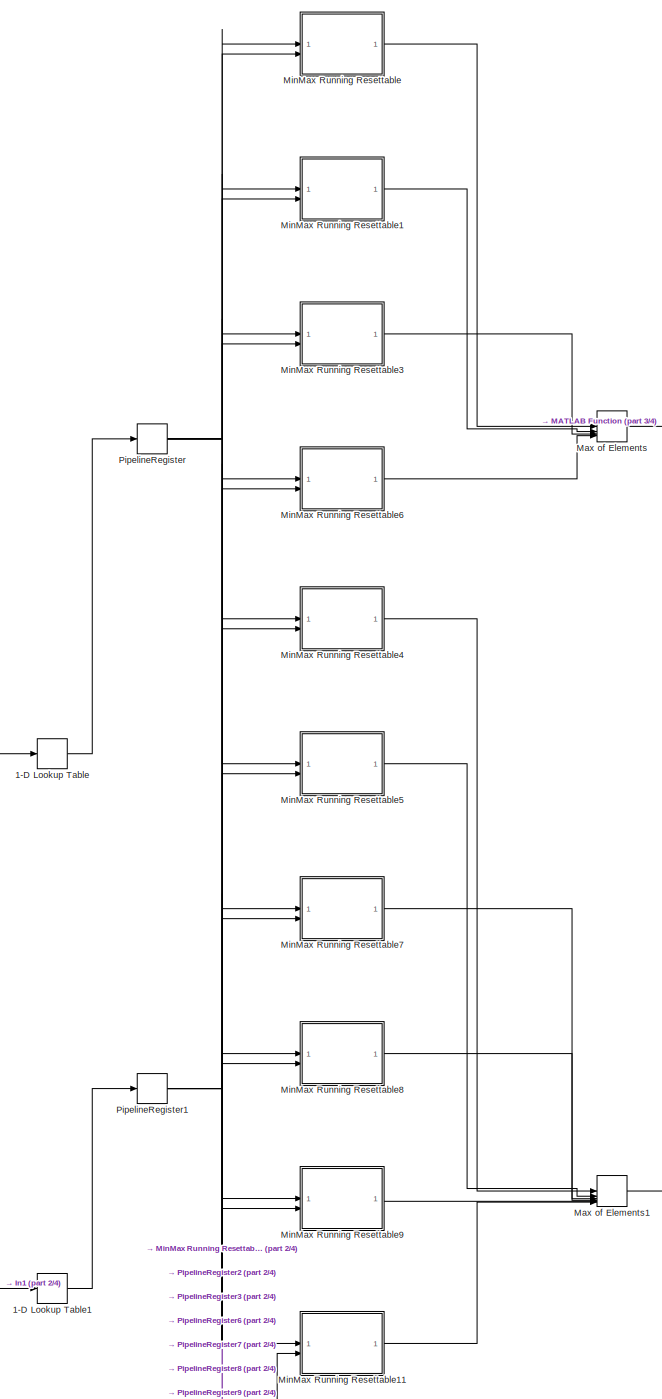
[diagram: root canvas - part 1/4, top center region]
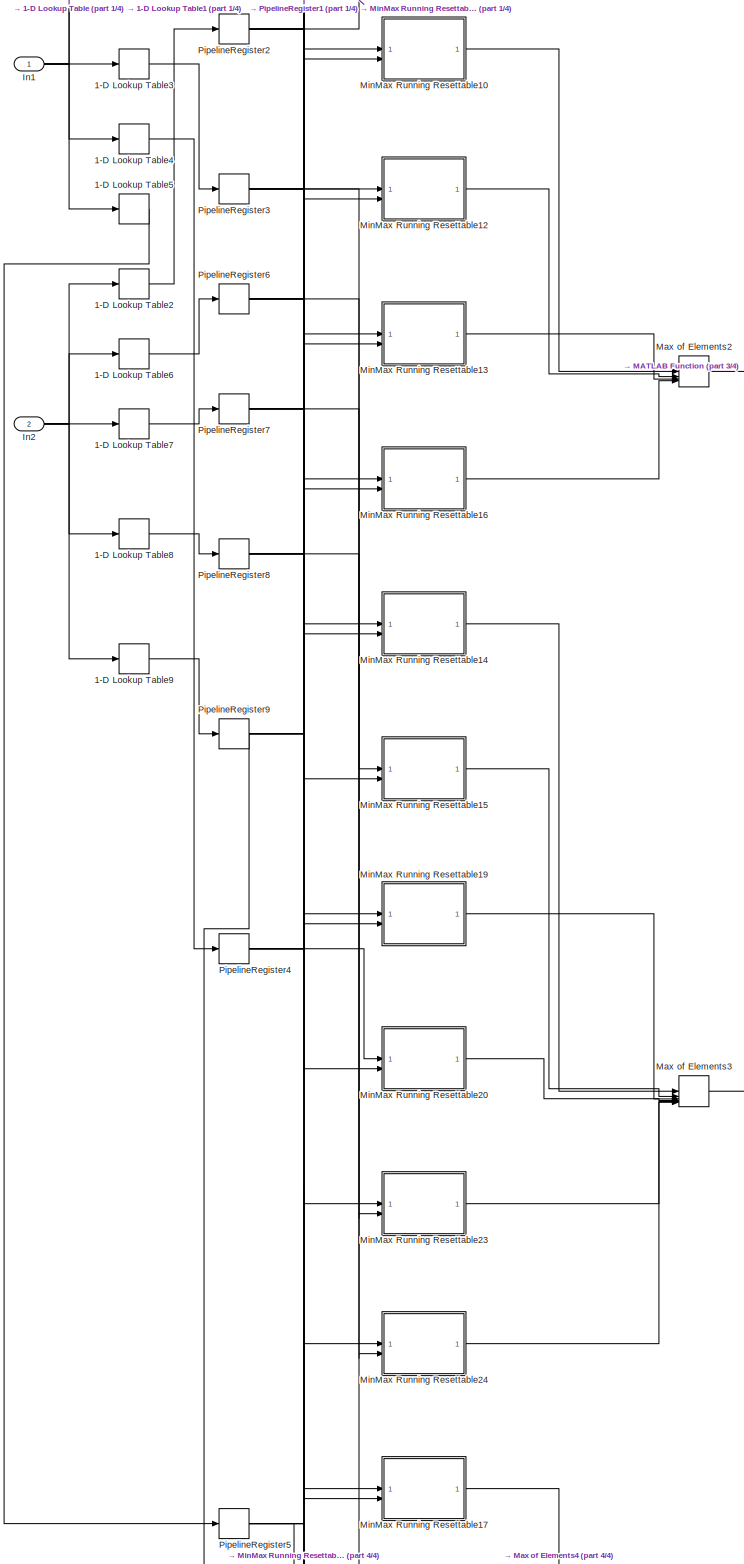
[diagram: root canvas - part 2/4, middle left region]
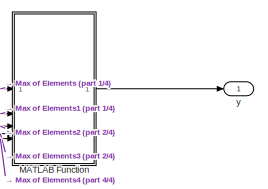
[diagram: root canvas - part 3/4, middle right region]
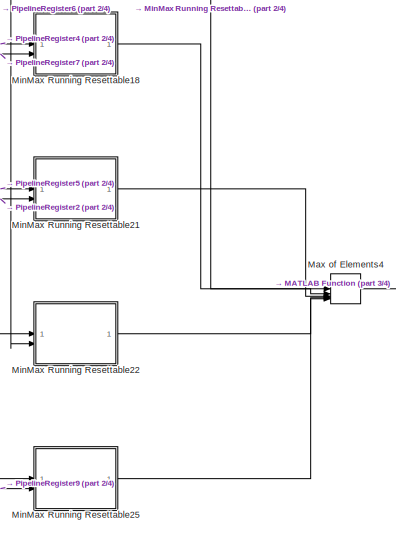
[diagram: root canvas - part 4/4, bottom center region]
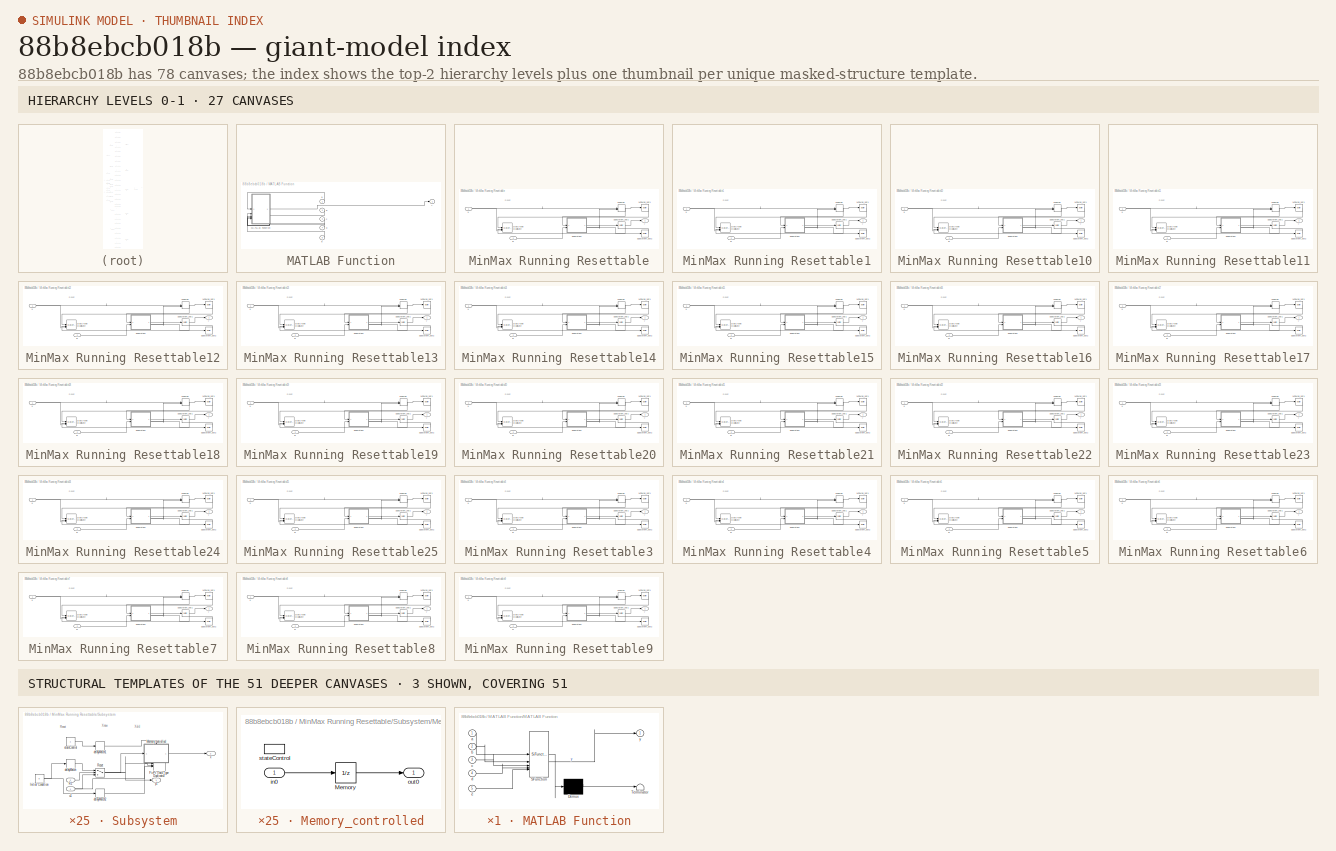
[diagram: thumbnail index - top-2 hierarchy levels (27 canvases) + 3 structural-template representatives of the remaining 51 canvases]
MODEL slx_88b8ebcb018b
KIND model
CONFIG AbsTol = auto
CONFIG EnableMultiTasking = off
CONFIG FixedStep = auto
CONFIG MaxStep = auto
CONFIG MinStep = auto
CONFIG RelTol = 1e-3
CONFIG SampleTimeConstraint = Unconstrained
CONFIG SolverName = VariableStepAuto
CONFIG StartTime = 0.0
CONFIG StopTime = 10.0
WORKSPACE source: mxarray member
WORKSPACE x = 1
WORKSPACE y = [100 100 100 100 100 100 100 100 100 100 100 100 ... (256 elements, 256x1)]
BLOCK [Lookup_n-D] 1-D Lookup Table
  BreakpointsForDimension1 = fi("numerictype",numerictype(0,8,0),"fimath",fimath("RoundingMethod", "Floor","OverflowAction", "Wrap","ProductMode","FullPrecision","SumMode","FullPrecision"),"Value","[0 1 2 3 4 5 6 7 8 9 10 11 12 13 14 15 16 17 18 19 20 21 22 23 24 25 26 27 28 29 30 31 32 33 34 35 36 37 38 39 40 41 42 43 44 45 46 47 48 49 50 51 52 53 54 55 56 57 58 59 60 61 62 63 64 65 66 67 68 69 70 71 72 73 74 75 76 77 78 79 ...<+686ch>  <repeated x5 — deduplicated; at blocks: 1-D Lookup Table, 1-D Lookup Table1, 1-D Lookup Table3, 1-D Lookup Table4, 1-D Lookup Table5>
  ExtrapMethod = Clip
  InputPortMap = u0
  InterpMethod = Flat
  NumberOfTableDimensions = 1
  OutDataTypeStr = uint8
  SampleTime = 0.2
  Table = reshape(fi("numerictype",numerictype(0,8,0),"fimath",fimath("RoundingMethod", "Floor","OverflowAction", "Wrap","ProductMode","FullPrecision","SumMode","FullPrecision"),"Value","[100;100;100;100;100;100;100;100;100;100;100;100;100;100;100;100;100;100;100;100;100;95;90;85;80;75;70;65;60;55;50;45;40;35;30;25;20;15;10;5;0;0;0;0;0;0;0;0;0;0;0;0;0;0;0;0;0;0;0;0;0;0;0;0;0;0;0;0;0;0;0;0;0;0;0;0;0;0;0;0;0;...<+365ch>
BLOCK [Lookup_n-D] 1-D Lookup Table1
  ExtrapMethod = Clip
  InputPortMap = u0
  InterpMethod = Flat
  NumberOfTableDimensions = 1
  OutDataTypeStr = uint8
  SampleTime = 0.2
  Table = reshape(fi("numerictype",numerictype(0,8,0),"fimath",fimath("RoundingMethod", "Floor","OverflowAction", "Wrap","ProductMode","FullPrecision","SumMode","FullPrecision"),"Value","[0;0;0;0;0;0;0;0;0;0;0;0;0;0;0;0;0;0;0;0;0;5;10;15;20;25;30;35;40;45;50;55;60;65;70;75;80;85;90;95;100;100;100;100;100;100;100;100;100;100;100;100;100;100;100;100;100;100;100;100;100;95;90;85;80;75;70;65;60;55;50;45;40;35;3...<+383ch>
BLOCK [Lookup_n-D] 1-D Lookup Table2
  BreakpointsForDimension1 = fi("numerictype",numerictype(0,10,0),"fimath",fimath("RoundingMethod", "Floor","OverflowAction", "Wrap","ProductMode","FullPrecision","SumMode","FullPrecision"),"Value","[0 1 2 3 4 5 6 7 8 9 10 11 12 13 14 15 16 17 18 19 20 21 22 23 24 25 26 27 28 29 30 31 32 33 34 35 36 37 38 39 40 41 42 43 44 45 46 47 48 49 50 51 52 53 54 55 56 57 58 59 60 61 62 63 64 65 66 67 68 69 70 71 72 73 74 75 76 77 78 79...<+3783ch>  <repeated x5 — deduplicated; at blocks: 1-D Lookup Table2, 1-D Lookup Table6, 1-D Lookup Table7, 1-D Lookup Table8, 1-D Lookup Table9>
  ExtrapMethod = Clip
  InputPortMap = u0
  InterpMethod = Flat
  NumberOfTableDimensions = 1
  OutDataTypeStr = uint8
  SampleTime = 0.2
  Table = reshape(fi("numerictype",numerictype(0,8,0),"fimath",fimath("RoundingMethod", "Floor","OverflowAction", "Wrap","ProductMode","FullPrecision","SumMode","FullPrecision"),"Value","[100;100;100;100;100;100;100;100;100;100;100;100;100;100;100;100;100;100;100;100;100;100;100;100;100;100;100;100;100;100;100;100;100;100;100;100;100;100;100;100;100;100;100;100;100;100;100;100;100;100;100;100;100;100;100;10...<+2135ch>
BLOCK [Lookup_n-D] 1-D Lookup Table3
  ExtrapMethod = Clip
  InputPortMap = u0
  InterpMethod = Flat
  NumberOfTableDimensions = 1
  OutDataTypeStr = uint8
  SampleTime = 0.2
  Table = reshape(fi("numerictype",numerictype(0,8,0),"fimath",fimath("RoundingMethod", "Floor","OverflowAction", "Wrap","ProductMode","FullPrecision","SumMode","FullPrecision"),"Value","[0;0;0;0;0;0;0;0;0;0;0;0;0;0;0;0;0;0;0;0;0;0;0;0;0;0;0;0;0;0;0;0;0;0;0;0;0;0;0;0;0;0;0;0;0;0;0;0;0;0;0;0;0;0;0;0;0;0;0;0;0;5;10;15;20;25;30;35;40;45;50;55;60;65;70;75;80;85;90;95;100;100;100;100;100;100;100;100;100;100;100;...<+383ch>
BLOCK [Lookup_n-D] 1-D Lookup Table4
  ExtrapMethod = Clip
  InputPortMap = u0
  InterpMethod = Flat
  NumberOfTableDimensions = 1
  OutDataTypeStr = uint8
  SampleTime = 0.2
  Table = reshape(fi("numerictype",numerictype(0,8,0),"fimath",fimath("RoundingMethod", "Floor","OverflowAction", "Wrap","ProductMode","FullPrecision","SumMode","FullPrecision"),"Value","[0;0;0;0;0;0;0;0;0;0;0;0;0;0;0;0;0;0;0;0;0;0;0;0;0;0;0;0;0;0;0;0;0;0;0;0;0;0;0;0;0;0;0;0;0;0;0;0;0;0;0;0;0;0;0;0;0;0;0;0;0;0;0;0;0;0;0;0;0;0;0;0;0;0;0;0;0;0;0;0;0;0;0;0;0;0;0;0;0;0;0;0;0;0;0;0;0;0;0;0;0;5;10;15;20;25;30;35;...<+383ch>
BLOCK [Lookup_n-D] 1-D Lookup Table5
  ExtrapMethod = Clip
  InputPortMap = u0
  InterpMethod = Flat
  NumberOfTableDimensions = 1
  OutDataTypeStr = uint8
  SampleTime = 0.2
  Table = reshape(fi("numerictype",numerictype(0,8,0),"fimath",fimath("RoundingMethod", "Floor","OverflowAction", "Wrap","ProductMode","FullPrecision","SumMode","FullPrecision"),"Value","[0;0;0;0;0;0;0;0;0;0;0;0;0;0;0;0;0;0;0;0;0;0;0;0;0;0;0;0;0;0;0;0;0;0;0;0;0;0;0;0;0;0;0;0;0;0;0;0;0;0;0;0;0;0;0;0;0;0;0;0;0;0;0;0;0;0;0;0;0;0;0;0;0;0;0;0;0;0;0;0;0;0;0;0;0;0;0;0;0;0;0;0;0;0;0;0;0;0;0;0;0;0;0;0;0;0;0;0;0;0;0;...<+515ch>
BLOCK [Lookup_n-D] 1-D Lookup Table6
  ExtrapMethod = Clip
  InputPortMap = u0
  InterpMethod = Flat
  NumberOfTableDimensions = 1
  OutDataTypeStr = uint8
  SampleTime = 0.2
  Table = reshape(fi("numerictype",numerictype(0,8,0),"fimath",fimath("RoundingMethod", "Floor","OverflowAction", "Wrap","ProductMode","FullPrecision","SumMode","FullPrecision"),"Value","[0;0;0;0;0;0;0;0;0;0;0;0;0;0;0;0;0;0;0;0;0;0;0;0;0;0;0;0;0;0;0;0;0;0;0;0;0;0;0;0;0;0;0;0;0;0;0;0;0;0;0;0;0;0;0;0;0;0;0;0;0;0;0;0;0;0;0;0;0;0;0;0;0;0;0;0;0;0;0;0;0;0;0;0;0;0;0;0;0;0;0;0;0;0;0;0;0;0;0;0;0;1;2;3;4;5;6;7;8;9;10...<+2225ch>
BLOCK [Lookup_n-D] 1-D Lookup Table7
  ExtrapMethod = Clip
  InputPortMap = u0
  InterpMethod = Flat
  NumberOfTableDimensions = 1
  OutDataTypeStr = uint8
  SampleTime = 0.2
  Table = reshape(fi("numerictype",numerictype(0,8,0),"fimath",fimath("RoundingMethod", "Floor","OverflowAction", "Wrap","ProductMode","FullPrecision","SumMode","FullPrecision"),"Value","[0;0;0;0;0;0;0;0;0;0;0;0;0;0;0;0;0;0;0;0;0;0;0;0;0;0;0;0;0;0;0;0;0;0;0;0;0;0;0;0;0;0;0;0;0;0;0;0;0;0;0;0;0;0;0;0;0;0;0;0;0;0;0;0;0;0;0;0;0;0;0;0;0;0;0;0;0;0;0;0;0;0;0;0;0;0;0;0;0;0;0;0;0;0;0;0;0;0;0;0;0;0;0;0;0;0;0;0;0;0;0;...<+2225ch>
BLOCK [Lookup_n-D] 1-D Lookup Table8
  ExtrapMethod = Clip
  InputPortMap = u0
  InterpMethod = Flat
  NumberOfTableDimensions = 1
  OutDataTypeStr = uint8
  SampleTime = 0.2
  Table = reshape(fi("numerictype",numerictype(0,8,0),"fimath",fimath("RoundingMethod", "Floor","OverflowAction", "Wrap","ProductMode","FullPrecision","SumMode","FullPrecision"),"Value","[0;0;0;0;0;0;0;0;0;0;0;0;0;0;0;0;0;0;0;0;0;0;0;0;0;0;0;0;0;0;0;0;0;0;0;0;0;0;0;0;0;0;0;0;0;0;0;0;0;0;0;0;0;0;0;0;0;0;0;0;0;0;0;0;0;0;0;0;0;0;0;0;0;0;0;0;0;0;0;0;0;0;0;0;0;0;0;0;0;0;0;0;0;0;0;0;0;0;0;0;0;0;0;0;0;0;0;0;0;0;0;...<+2225ch>
BLOCK [Lookup_n-D] 1-D Lookup Table9
  ExtrapMethod = Clip
  InputPortMap = u0
  InterpMethod = Flat
  NumberOfTableDimensions = 1
  OutDataTypeStr = uint8
  SampleTime = 0.2
  Table = reshape(fi("numerictype",numerictype(0,8,0),"fimath",fimath("RoundingMethod", "Floor","OverflowAction", "Wrap","ProductMode","FullPrecision","SumMode","FullPrecision"),"Value","[0;0;0;0;0;0;0;0;0;0;0;0;0;0;0;0;0;0;0;0;0;0;0;0;0;0;0;0;0;0;0;0;0;0;0;0;0;0;0;0;0;0;0;0;0;0;0;0;0;0;0;0;0;0;0;0;0;0;0;0;0;0;0;0;0;0;0;0;0;0;0;0;0;0;0;0;0;0;0;0;0;0;0;0;0;0;0;0;0;0;0;0;0;0;0;0;0;0;0;0;0;0;0;0;0;0;0;0;0;0;0;...<+2381ch>
BLOCK [Inport] In1
  OutDataTypeStr = uint8
  PortDimensions = 1
  SampleTime = 0.2
BLOCK [Inport] In2
  OutDataTypeStr = uint8
  Port = 2
  PortDimensions = 1
  SampleTime = 0.2
BLOCK [SubSystem] MATLAB Function
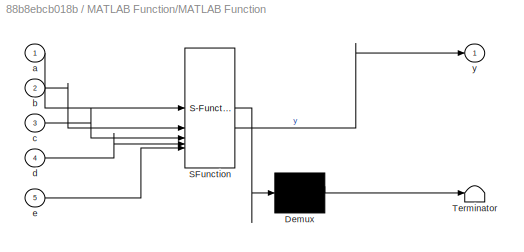
BLOCK [SubSystem] MATLAB Function/MATLAB Function
  ErrorFcn = Stateflow.Translate.translate
  LibrarySourceBlock = simulink/User-Defined\nFunctions/MATLAB Function
  PermitHierarchicalResolution = ExplicitOnly
  SFBlockType = MATLAB Function
  TreatAsAtomicUnit = on
BLOCK [Demux] MATLAB Function/MATLAB Function/ Demux 
  Outputs = 1
BLOCK [S-Function] MATLAB Function/MATLAB Function/ SFunction 
  EnableBusSupport = on
  FunctionName = sf_sfun
  PortCounts = [5 2]
  SFcnIsStateOwnerBlock = off
  SFunctionDeploymentMode = off
  Tag = Stateflow S-Function 2
BLOCK [Terminator] MATLAB Function/MATLAB Function/ Terminator 
BLOCK [Inport] MATLAB Function/MATLAB Function/a
BLOCK [Inport] MATLAB Function/MATLAB Function/b
  Port = 2
BLOCK [Inport] MATLAB Function/MATLAB Function/c
  Port = 3
BLOCK [Inport] MATLAB Function/MATLAB Function/d
  Port = 4
BLOCK [Inport] MATLAB Function/MATLAB Function/e
  Port = 5
BLOCK [Outport] MATLAB Function/MATLAB Function/y
BLOCK [Inport] MATLAB Function/a
  OutDataTypeStr = uint8
  PortDimensions = 1
  SampleTime = 0.2
BLOCK [Inport] MATLAB Function/b
  OutDataTypeStr = uint8
  Port = 2
  PortDimensions = 1
  SampleTime = 0.2
BLOCK [Inport] MATLAB Function/c
  OutDataTypeStr = uint8
  Port = 3
  PortDimensions = 1
  SampleTime = 0.2
BLOCK [Inport] MATLAB Function/d
  OutDataTypeStr = uint8
  Port = 4
  PortDimensions = 1
  SampleTime = 0.2
BLOCK [Inport] MATLAB Function/e
  OutDataTypeStr = uint8
  Port = 5
  PortDimensions = 1
  SampleTime = 0.2
BLOCK [Outport] MATLAB Function/y
  SampleTime = 0.2
BLOCK [MinMax] Max of Elements
  Function = max
  Inputs = 4
  OutDataTypeStr = uint8
BLOCK [MinMax] Max of Elements1
  Function = max
  Inputs = 6
  OutDataTypeStr = uint8
BLOCK [MinMax] Max of Elements2
  Function = max
  Inputs = 4
  OutDataTypeStr = uint8
BLOCK [MinMax] Max of Elements3
  Function = max
  Inputs = 6
  OutDataTypeStr = uint8
BLOCK [MinMax] Max of Elements4
  Function = max
  Inputs = 5
  OutDataTypeStr = uint8
BLOCK [SubSystem] MinMax Running Resettable
BLOCK [DataTypeDuplicate] MinMax Running Resettable/Data Type Duplicate
  DisableCoverage = on
  NumInputPorts = 3
BLOCK [MinMax] MinMax Running Resettable/MinMax
  DisableCoverage = on
  Inputs = 2
  LockScale = on
  OutDataTypeStr = Inherit: Inherit via back propagation
  ZeroCross = off
BLOCK [Reference] MinMax Running Resettable/MinMax_out1  REF=hdlmdlgenlib/Buffer
  SourceBlock = hdlmdlgenlib/Buffer
  SourceType = Buffer/Wire
BLOCK [Inport] MinMax Running Resettable/R
  OutDataTypeStr = uint8
  Port = 2
  SampleTime = 0.2
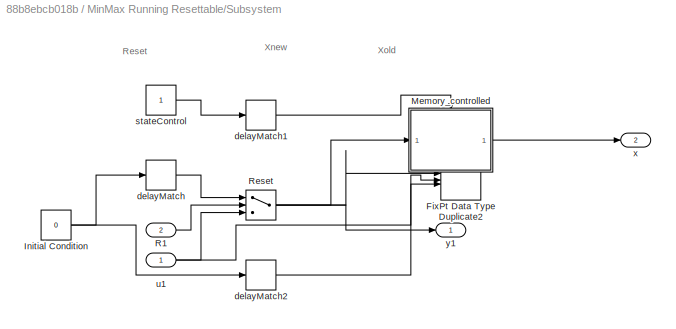
BLOCK [SubSystem] MinMax Running Resettable/Subsystem
BLOCK [DataTypeDuplicate] MinMax Running Resettable/Subsystem/FixPt Data Type Duplicate2
  DisableCoverage = on
  NumInputPorts = 4
BLOCK [Constant] MinMax Running Resettable/Subsystem/Initial Condition
  OutDataTypeStr = uint8
  SampleTime = 0.2
  Value = 0
BLOCK [SubSystem] MinMax Running Resettable/Subsystem/Memory_controlled
BLOCK [UnitDelay] MinMax Running Resettable/Subsystem/Memory_controlled/Memory
  InitialCondition = double(0)
  SampleTime = 0.2
BLOCK [Inport] MinMax Running Resettable/Subsystem/Memory_controlled/in0
  OutDataTypeStr = uint8
  SampleTime = 0.2
BLOCK [Outport] MinMax Running Resettable/Subsystem/Memory_controlled/out0
  OutDataTypeStr = uint8
  SampleTime = 0.2
BLOCK [EnablePort] MinMax Running Resettable/Subsystem/Memory_controlled/stateControl
  OutDataTypeStr = boolean
BLOCK [Inport] MinMax Running Resettable/Subsystem/R1
  OutDataTypeStr = uint8
  Port = 2
  PortDimensions = 1
  SampleTime = 0.2
BLOCK [Switch] MinMax Running Resettable/Subsystem/Reset
  Criteria = u2 ~= 0
  InputSameDT = off
  OutDataTypeStr = uint8
  SampleTime = 0.2
  SaturateOnIntegerOverflow = off
  Threshold = double(0)
BLOCK [Delay] MinMax Running Resettable/Subsystem/delayMatch
  DelayLength = double(1)
  InitialCondition = 0
  InputPortMap = u0
  SampleTime = 0.2
BLOCK [Delay] MinMax Running Resettable/Subsystem/delayMatch1
  DelayLength = double(1)
  InitialCondition = 0
  InputPortMap = u0
  SampleTime = 0.2
BLOCK [Delay] MinMax Running Resettable/Subsystem/delayMatch2
  DelayLength = double(1)
  InitialCondition = 0
  InputPortMap = u0
  SampleTime = 0.2
BLOCK [Constant] MinMax Running Resettable/Subsystem/stateControl
  OutDataTypeStr = boolean
  SampleTime = 0.2
BLOCK [Inport] MinMax Running Resettable/Subsystem/u1
  OutDataTypeStr = uint8
  PortDimensions = 1
  SampleTime = 0.2
BLOCK [Outport] MinMax Running Resettable/Subsystem/x
  Port = 2
  SampleTime = 0.2
BLOCK [Outport] MinMax Running Resettable/Subsystem/y1
  SampleTime = 0.2
BLOCK [Reference] MinMax Running Resettable/Subsystem_out1  REF=hdlmdlgenlib/Buffer
  SourceBlock = hdlmdlgenlib/Buffer
  SourceType = Buffer/Wire
BLOCK [Reference] MinMax Running Resettable/Subsystem_out2  REF=hdlmdlgenlib/Buffer
  SourceBlock = hdlmdlgenlib/Buffer
  SourceType = Buffer/Wire
BLOCK [Inport] MinMax Running Resettable/u
  OutDataTypeStr = uint8
  SampleTime = 0.2
BLOCK [Outport] MinMax Running Resettable/y
  SampleTime = 0.2
BLOCK [SubSystem] MinMax Running Resettable1
BLOCK [DataTypeDuplicate] MinMax Running Resettable1/Data Type Duplicate
  DisableCoverage = on
  NumInputPorts = 3
BLOCK [MinMax] MinMax Running Resettable1/MinMax
  DisableCoverage = on
  Inputs = 2
  LockScale = on
  OutDataTypeStr = Inherit: Inherit via back propagation
  ZeroCross = off
BLOCK [Reference] MinMax Running Resettable1/MinMax_out1  REF=hdlmdlgenlib/Buffer
  SourceBlock = hdlmdlgenlib/Buffer
  SourceType = Buffer/Wire
BLOCK [Inport] MinMax Running Resettable1/R
  OutDataTypeStr = uint8
  Port = 2
  SampleTime = 0.2
BLOCK [SubSystem] MinMax Running Resettable1/Subsystem
BLOCK [DataTypeDuplicate] MinMax Running Resettable1/Subsystem/FixPt Data Type Duplicate2
  DisableCoverage = on
  NumInputPorts = 4
BLOCK [Constant] MinMax Running Resettable1/Subsystem/Initial Condition
  OutDataTypeStr = uint8
  SampleTime = 0.2
  Value = 0
BLOCK [SubSystem] MinMax Running Resettable1/Subsystem/Memory_controlled
BLOCK [UnitDelay] MinMax Running Resettable1/Subsystem/Memory_controlled/Memory
  InitialCondition = double(0)
  SampleTime = 0.2
BLOCK [Inport] MinMax Running Resettable1/Subsystem/Memory_controlled/in0
  OutDataTypeStr = uint8
  SampleTime = 0.2
BLOCK [Outport] MinMax Running Resettable1/Subsystem/Memory_controlled/out0
  OutDataTypeStr = uint8
  SampleTime = 0.2
BLOCK [EnablePort] MinMax Running Resettable1/Subsystem/Memory_controlled/stateControl
  OutDataTypeStr = boolean
BLOCK [Inport] MinMax Running Resettable1/Subsystem/R1
  OutDataTypeStr = uint8
  Port = 2
  PortDimensions = 1
  SampleTime = 0.2
BLOCK [Switch] MinMax Running Resettable1/Subsystem/Reset
  Criteria = u2 ~= 0
  InputSameDT = off
  OutDataTypeStr = uint8
  SampleTime = 0.2
  SaturateOnIntegerOverflow = off
  Threshold = double(0)
BLOCK [Delay] MinMax Running Resettable1/Subsystem/delayMatch
  DelayLength = double(1)
  InitialCondition = 0
  InputPortMap = u0
  SampleTime = 0.2
BLOCK [Delay] MinMax Running Resettable1/Subsystem/delayMatch1
  DelayLength = double(1)
  InitialCondition = 0
  InputPortMap = u0
  SampleTime = 0.2
BLOCK [Delay] MinMax Running Resettable1/Subsystem/delayMatch2
  DelayLength = double(1)
  InitialCondition = 0
  InputPortMap = u0
  SampleTime = 0.2
BLOCK [Constant] MinMax Running Resettable1/Subsystem/stateControl
  OutDataTypeStr = boolean
  SampleTime = 0.2
BLOCK [Inport] MinMax Running Resettable1/Subsystem/u1
  OutDataTypeStr = uint8
  PortDimensions = 1
  SampleTime = 0.2
BLOCK [Outport] MinMax Running Resettable1/Subsystem/x
  Port = 2
  SampleTime = 0.2
BLOCK [Outport] MinMax Running Resettable1/Subsystem/y1
  SampleTime = 0.2
BLOCK [Reference] MinMax Running Resettable1/Subsystem_out1  REF=hdlmdlgenlib/Buffer
  SourceBlock = hdlmdlgenlib/Buffer
  SourceType = Buffer/Wire
BLOCK [Reference] MinMax Running Resettable1/Subsystem_out2  REF=hdlmdlgenlib/Buffer
  SourceBlock = hdlmdlgenlib/Buffer
  SourceType = Buffer/Wire
BLOCK [Inport] MinMax Running Resettable1/u
  OutDataTypeStr = uint8
  SampleTime = 0.2
BLOCK [Outport] MinMax Running Resettable1/y
  SampleTime = 0.2
BLOCK [SubSystem] MinMax Running Resettable10
BLOCK [DataTypeDuplicate] MinMax Running Resettable10/Data Type Duplicate
  DisableCoverage = on
  NumInputPorts = 3
BLOCK [MinMax] MinMax Running Resettable10/MinMax
  DisableCoverage = on
  Inputs = 2
  LockScale = on
  OutDataTypeStr = Inherit: Inherit via back propagation
  ZeroCross = off
BLOCK [Reference] MinMax Running Resettable10/MinMax_out1  REF=hdlmdlgenlib/Buffer
  SourceBlock = hdlmdlgenlib/Buffer
  SourceType = Buffer/Wire
BLOCK [Inport] MinMax Running Resettable10/R
  OutDataTypeStr = uint8
  Port = 2
  SampleTime = 0.2
BLOCK [SubSystem] MinMax Running Resettable10/Subsystem
BLOCK [DataTypeDuplicate] MinMax Running Resettable10/Subsystem/FixPt Data Type Duplicate2
  DisableCoverage = on
  NumInputPorts = 4
BLOCK [Constant] MinMax Running Resettable10/Subsystem/Initial Condition
  OutDataTypeStr = uint8
  SampleTime = 0.2
  Value = 0
BLOCK [SubSystem] MinMax Running Resettable10/Subsystem/Memory_controlled
BLOCK [UnitDelay] MinMax Running Resettable10/Subsystem/Memory_controlled/Memory
  InitialCondition = double(0)
  SampleTime = 0.2
BLOCK [Inport] MinMax Running Resettable10/Subsystem/Memory_controlled/in0
  OutDataTypeStr = uint8
  SampleTime = 0.2
BLOCK [Outport] MinMax Running Resettable10/Subsystem/Memory_controlled/out0
  OutDataTypeStr = uint8
  SampleTime = 0.2
BLOCK [EnablePort] MinMax Running Resettable10/Subsystem/Memory_controlled/stateControl
  OutDataTypeStr = boolean
BLOCK [Inport] MinMax Running Resettable10/Subsystem/R1
  OutDataTypeStr = uint8
  Port = 2
  PortDimensions = 1
  SampleTime = 0.2
BLOCK [Switch] MinMax Running Resettable10/Subsystem/Reset
  Criteria = u2 ~= 0
  InputSameDT = off
  OutDataTypeStr = uint8
  SampleTime = 0.2
  SaturateOnIntegerOverflow = off
  Threshold = double(0)
BLOCK [Delay] MinMax Running Resettable10/Subsystem/delayMatch
  DelayLength = double(1)
  InitialCondition = 0
  InputPortMap = u0
  SampleTime = 0.2
BLOCK [Delay] MinMax Running Resettable10/Subsystem/delayMatch1
  DelayLength = double(1)
  InitialCondition = 0
  InputPortMap = u0
  SampleTime = 0.2
BLOCK [Delay] MinMax Running Resettable10/Subsystem/delayMatch2
  DelayLength = double(1)
  InitialCondition = 0
  InputPortMap = u0
  SampleTime = 0.2
BLOCK [Constant] MinMax Running Resettable10/Subsystem/stateControl
  OutDataTypeStr = boolean
  SampleTime = 0.2
BLOCK [Inport] MinMax Running Resettable10/Subsystem/u1
  OutDataTypeStr = uint8
  PortDimensions = 1
  SampleTime = 0.2
BLOCK [Outport] MinMax Running Resettable10/Subsystem/x
  Port = 2
  SampleTime = 0.2
BLOCK [Outport] MinMax Running Resettable10/Subsystem/y1
  SampleTime = 0.2
BLOCK [Reference] MinMax Running Resettable10/Subsystem_out1  REF=hdlmdlgenlib/Buffer
  SourceBlock = hdlmdlgenlib/Buffer
  SourceType = Buffer/Wire
BLOCK [Reference] MinMax Running Resettable10/Subsystem_out2  REF=hdlmdlgenlib/Buffer
  SourceBlock = hdlmdlgenlib/Buffer
  SourceType = Buffer/Wire
BLOCK [Inport] MinMax Running Resettable10/u
  OutDataTypeStr = uint8
  SampleTime = 0.2
BLOCK [Outport] MinMax Running Resettable10/y
  SampleTime = 0.2
BLOCK [SubSystem] MinMax Running Resettable11
BLOCK [DataTypeDuplicate] MinMax Running Resettable11/Data Type Duplicate
  DisableCoverage = on
  NumInputPorts = 3
BLOCK [MinMax] MinMax Running Resettable11/MinMax
  DisableCoverage = on
  Inputs = 2
  LockScale = on
  OutDataTypeStr = Inherit: Inherit via back propagation
  ZeroCross = off
BLOCK [Reference] MinMax Running Resettable11/MinMax_out1  REF=hdlmdlgenlib/Buffer
  SourceBlock = hdlmdlgenlib/Buffer
  SourceType = Buffer/Wire
BLOCK [Inport] MinMax Running Resettable11/R
  OutDataTypeStr = uint8
  Port = 2
  SampleTime = 0.2
BLOCK [SubSystem] MinMax Running Resettable11/Subsystem
BLOCK [DataTypeDuplicate] MinMax Running Resettable11/Subsystem/FixPt Data Type Duplicate2
  DisableCoverage = on
  NumInputPorts = 4
BLOCK [Constant] MinMax Running Resettable11/Subsystem/Initial Condition
  OutDataTypeStr = uint8
  SampleTime = 0.2
  Value = 0
BLOCK [SubSystem] MinMax Running Resettable11/Subsystem/Memory_controlled
BLOCK [UnitDelay] MinMax Running Resettable11/Subsystem/Memory_controlled/Memory
  InitialCondition = double(0)
  SampleTime = 0.2
BLOCK [Inport] MinMax Running Resettable11/Subsystem/Memory_controlled/in0
  OutDataTypeStr = uint8
  SampleTime = 0.2
BLOCK [Outport] MinMax Running Resettable11/Subsystem/Memory_controlled/out0
  OutDataTypeStr = uint8
  SampleTime = 0.2
BLOCK [EnablePort] MinMax Running Resettable11/Subsystem/Memory_controlled/stateControl
  OutDataTypeStr = boolean
BLOCK [Inport] MinMax Running Resettable11/Subsystem/R1
  OutDataTypeStr = uint8
  Port = 2
  PortDimensions = 1
  SampleTime = 0.2
BLOCK [Switch] MinMax Running Resettable11/Subsystem/Reset
  Criteria = u2 ~= 0
  InputSameDT = off
  OutDataTypeStr = uint8
  SampleTime = 0.2
  SaturateOnIntegerOverflow = off
  Threshold = double(0)
BLOCK [Delay] MinMax Running Resettable11/Subsystem/delayMatch
  DelayLength = double(1)
  InitialCondition = 0
  InputPortMap = u0
  SampleTime = 0.2
BLOCK [Delay] MinMax Running Resettable11/Subsystem/delayMatch1
  DelayLength = double(1)
  InitialCondition = 0
  InputPortMap = u0
  SampleTime = 0.2
BLOCK [Delay] MinMax Running Resettable11/Subsystem/delayMatch2
  DelayLength = double(1)
  InitialCondition = 0
  InputPortMap = u0
  SampleTime = 0.2
BLOCK [Constant] MinMax Running Resettable11/Subsystem/stateControl
  OutDataTypeStr = boolean
  SampleTime = 0.2
BLOCK [Inport] MinMax Running Resettable11/Subsystem/u1
  OutDataTypeStr = uint8
  PortDimensions = 1
  SampleTime = 0.2
BLOCK [Outport] MinMax Running Resettable11/Subsystem/x
  Port = 2
  SampleTime = 0.2
BLOCK [Outport] MinMax Running Resettable11/Subsystem/y1
  SampleTime = 0.2
BLOCK [Reference] MinMax Running Resettable11/Subsystem_out1  REF=hdlmdlgenlib/Buffer
  SourceBlock = hdlmdlgenlib/Buffer
  SourceType = Buffer/Wire
BLOCK [Reference] MinMax Running Resettable11/Subsystem_out2  REF=hdlmdlgenlib/Buffer
  SourceBlock = hdlmdlgenlib/Buffer
  SourceType = Buffer/Wire
BLOCK [Inport] MinMax Running Resettable11/u
  OutDataTypeStr = uint8
  SampleTime = 0.2
BLOCK [Outport] MinMax Running Resettable11/y
  SampleTime = 0.2
BLOCK [SubSystem] MinMax Running Resettable12
BLOCK [DataTypeDuplicate] MinMax Running Resettable12/Data Type Duplicate
  DisableCoverage = on
  NumInputPorts = 3
BLOCK [MinMax] MinMax Running Resettable12/MinMax
  DisableCoverage = on
  Inputs = 2
  LockScale = on
  OutDataTypeStr = Inherit: Inherit via back propagation
  ZeroCross = off
BLOCK [Reference] MinMax Running Resettable12/MinMax_out1  REF=hdlmdlgenlib/Buffer
  SourceBlock = hdlmdlgenlib/Buffer
  SourceType = Buffer/Wire
BLOCK [Inport] MinMax Running Resettable12/R
  OutDataTypeStr = uint8
  Port = 2
  SampleTime = 0.2
BLOCK [SubSystem] MinMax Running Resettable12/Subsystem
BLOCK [DataTypeDuplicate] MinMax Running Resettable12/Subsystem/FixPt Data Type Duplicate2
  DisableCoverage = on
  NumInputPorts = 4
BLOCK [Constant] MinMax Running Resettable12/Subsystem/Initial Condition
  OutDataTypeStr = uint8
  SampleTime = 0.2
  Value = 0
BLOCK [SubSystem] MinMax Running Resettable12/Subsystem/Memory_controlled
BLOCK [UnitDelay] MinMax Running Resettable12/Subsystem/Memory_controlled/Memory
  InitialCondition = double(0)
  SampleTime = 0.2
BLOCK [Inport] MinMax Running Resettable12/Subsystem/Memory_controlled/in0
  OutDataTypeStr = uint8
  SampleTime = 0.2
BLOCK [Outport] MinMax Running Resettable12/Subsystem/Memory_controlled/out0
  OutDataTypeStr = uint8
  SampleTime = 0.2
BLOCK [EnablePort] MinMax Running Resettable12/Subsystem/Memory_controlled/stateControl
  OutDataTypeStr = boolean
BLOCK [Inport] MinMax Running Resettable12/Subsystem/R1
  OutDataTypeStr = uint8
  Port = 2
  PortDimensions = 1
  SampleTime = 0.2
BLOCK [Switch] MinMax Running Resettable12/Subsystem/Reset
  Criteria = u2 ~= 0
  InputSameDT = off
  OutDataTypeStr = uint8
  SampleTime = 0.2
  SaturateOnIntegerOverflow = off
  Threshold = double(0)
BLOCK [Delay] MinMax Running Resettable12/Subsystem/delayMatch
  DelayLength = double(1)
  InitialCondition = 0
  InputPortMap = u0
  SampleTime = 0.2
BLOCK [Delay] MinMax Running Resettable12/Subsystem/delayMatch1
  DelayLength = double(1)
  InitialCondition = 0
  InputPortMap = u0
  SampleTime = 0.2
BLOCK [Delay] MinMax Running Resettable12/Subsystem/delayMatch2
  DelayLength = double(1)
  InitialCondition = 0
  InputPortMap = u0
  SampleTime = 0.2
BLOCK [Constant] MinMax Running Resettable12/Subsystem/stateControl
  OutDataTypeStr = boolean
  SampleTime = 0.2
BLOCK [Inport] MinMax Running Resettable12/Subsystem/u1
  OutDataTypeStr = uint8
  PortDimensions = 1
  SampleTime = 0.2
BLOCK [Outport] MinMax Running Resettable12/Subsystem/x
  Port = 2
  SampleTime = 0.2
BLOCK [Outport] MinMax Running Resettable12/Subsystem/y1
  SampleTime = 0.2
BLOCK [Reference] MinMax Running Resettable12/Subsystem_out1  REF=hdlmdlgenlib/Buffer
  SourceBlock = hdlmdlgenlib/Buffer
  SourceType = Buffer/Wire
BLOCK [Reference] MinMax Running Resettable12/Subsystem_out2  REF=hdlmdlgenlib/Buffer
  SourceBlock = hdlmdlgenlib/Buffer
  SourceType = Buffer/Wire
BLOCK [Inport] MinMax Running Resettable12/u
  OutDataTypeStr = uint8
  SampleTime = 0.2
BLOCK [Outport] MinMax Running Resettable12/y
  SampleTime = 0.2
BLOCK [SubSystem] MinMax Running Resettable13
BLOCK [DataTypeDuplicate] MinMax Running Resettable13/Data Type Duplicate
  DisableCoverage = on
  NumInputPorts = 3
BLOCK [MinMax] MinMax Running Resettable13/MinMax
  DisableCoverage = on
  Inputs = 2
  LockScale = on
  OutDataTypeStr = Inherit: Inherit via back propagation
  ZeroCross = off
BLOCK [Reference] MinMax Running Resettable13/MinMax_out1  REF=hdlmdlgenlib/Buffer
  SourceBlock = hdlmdlgenlib/Buffer
  SourceType = Buffer/Wire
BLOCK [Inport] MinMax Running Resettable13/R
  OutDataTypeStr = uint8
  Port = 2
  SampleTime = 0.2
BLOCK [SubSystem] MinMax Running Resettable13/Subsystem
BLOCK [DataTypeDuplicate] MinMax Running Resettable13/Subsystem/FixPt Data Type Duplicate2
  DisableCoverage = on
  NumInputPorts = 4
BLOCK [Constant] MinMax Running Resettable13/Subsystem/Initial Condition
  OutDataTypeStr = uint8
  SampleTime = 0.2
  Value = 0
BLOCK [SubSystem] MinMax Running Resettable13/Subsystem/Memory_controlled
BLOCK [UnitDelay] MinMax Running Resettable13/Subsystem/Memory_controlled/Memory
  InitialCondition = double(0)
  SampleTime = 0.2
BLOCK [Inport] MinMax Running Resettable13/Subsystem/Memory_controlled/in0
  OutDataTypeStr = uint8
  SampleTime = 0.2
BLOCK [Outport] MinMax Running Resettable13/Subsystem/Memory_controlled/out0
  OutDataTypeStr = uint8
  SampleTime = 0.2
BLOCK [EnablePort] MinMax Running Resettable13/Subsystem/Memory_controlled/stateControl
  OutDataTypeStr = boolean
BLOCK [Inport] MinMax Running Resettable13/Subsystem/R1
  OutDataTypeStr = uint8
  Port = 2
  PortDimensions = 1
  SampleTime = 0.2
BLOCK [Switch] MinMax Running Resettable13/Subsystem/Reset
  Criteria = u2 ~= 0
  InputSameDT = off
  OutDataTypeStr = uint8
  SampleTime = 0.2
  SaturateOnIntegerOverflow = off
  Threshold = double(0)
BLOCK [Delay] MinMax Running Resettable13/Subsystem/delayMatch
  DelayLength = double(1)
  InitialCondition = 0
  InputPortMap = u0
  SampleTime = 0.2
BLOCK [Delay] MinMax Running Resettable13/Subsystem/delayMatch1
  DelayLength = double(1)
  InitialCondition = 0
  InputPortMap = u0
  SampleTime = 0.2
BLOCK [Delay] MinMax Running Resettable13/Subsystem/delayMatch2
  DelayLength = double(1)
  InitialCondition = 0
  InputPortMap = u0
  SampleTime = 0.2
BLOCK [Constant] MinMax Running Resettable13/Subsystem/stateControl
  OutDataTypeStr = boolean
  SampleTime = 0.2
BLOCK [Inport] MinMax Running Resettable13/Subsystem/u1
  OutDataTypeStr = uint8
  PortDimensions = 1
  SampleTime = 0.2
BLOCK [Outport] MinMax Running Resettable13/Subsystem/x
  Port = 2
  SampleTime = 0.2
BLOCK [Outport] MinMax Running Resettable13/Subsystem/y1
  SampleTime = 0.2
BLOCK [Reference] MinMax Running Resettable13/Subsystem_out1  REF=hdlmdlgenlib/Buffer
  SourceBlock = hdlmdlgenlib/Buffer
  SourceType = Buffer/Wire
BLOCK [Reference] MinMax Running Resettable13/Subsystem_out2  REF=hdlmdlgenlib/Buffer
  SourceBlock = hdlmdlgenlib/Buffer
  SourceType = Buffer/Wire
BLOCK [Inport] MinMax Running Resettable13/u
  OutDataTypeStr = uint8
  SampleTime = 0.2
BLOCK [Outport] MinMax Running Resettable13/y
  SampleTime = 0.2
BLOCK [SubSystem] MinMax Running Resettable14
BLOCK [DataTypeDuplicate] MinMax Running Resettable14/Data Type Duplicate
  DisableCoverage = on
  NumInputPorts = 3
BLOCK [MinMax] MinMax Running Resettable14/MinMax
  DisableCoverage = on
  Inputs = 2
  LockScale = on
  OutDataTypeStr = Inherit: Inherit via back propagation
  ZeroCross = off
BLOCK [Reference] MinMax Running Resettable14/MinMax_out1  REF=hdlmdlgenlib/Buffer
  SourceBlock = hdlmdlgenlib/Buffer
  SourceType = Buffer/Wire
BLOCK [Inport] MinMax Running Resettable14/R
  OutDataTypeStr = uint8
  Port = 2
  SampleTime = 0.2
BLOCK [SubSystem] MinMax Running Resettable14/Subsystem
BLOCK [DataTypeDuplicate] MinMax Running Resettable14/Subsystem/FixPt Data Type Duplicate2
  DisableCoverage = on
  NumInputPorts = 4
BLOCK [Constant] MinMax Running Resettable14/Subsystem/Initial Condition
  OutDataTypeStr = uint8
  SampleTime = 0.2
  Value = 0
BLOCK [SubSystem] MinMax Running Resettable14/Subsystem/Memory_controlled
BLOCK [UnitDelay] MinMax Running Resettable14/Subsystem/Memory_controlled/Memory
  InitialCondition = double(0)
  SampleTime = 0.2
BLOCK [Inport] MinMax Running Resettable14/Subsystem/Memory_controlled/in0
  OutDataTypeStr = uint8
  SampleTime = 0.2
BLOCK [Outport] MinMax Running Resettable14/Subsystem/Memory_controlled/out0
  OutDataTypeStr = uint8
  SampleTime = 0.2
BLOCK [EnablePort] MinMax Running Resettable14/Subsystem/Memory_controlled/stateControl
  OutDataTypeStr = boolean
BLOCK [Inport] MinMax Running Resettable14/Subsystem/R1
  OutDataTypeStr = uint8
  Port = 2
  PortDimensions = 1
  SampleTime = 0.2
BLOCK [Switch] MinMax Running Resettable14/Subsystem/Reset
  Criteria = u2 ~= 0
  InputSameDT = off
  OutDataTypeStr = uint8
  SampleTime = 0.2
  SaturateOnIntegerOverflow = off
  Threshold = double(0)
BLOCK [Delay] MinMax Running Resettable14/Subsystem/delayMatch
  DelayLength = double(1)
  InitialCondition = 0
  InputPortMap = u0
  SampleTime = 0.2
BLOCK [Delay] MinMax Running Resettable14/Subsystem/delayMatch1
  DelayLength = double(1)
  InitialCondition = 0
  InputPortMap = u0
  SampleTime = 0.2
BLOCK [Delay] MinMax Running Resettable14/Subsystem/delayMatch2
  DelayLength = double(1)
  InitialCondition = 0
  InputPortMap = u0
  SampleTime = 0.2
BLOCK [Constant] MinMax Running Resettable14/Subsystem/stateControl
  OutDataTypeStr = boolean
  SampleTime = 0.2
BLOCK [Inport] MinMax Running Resettable14/Subsystem/u1
  OutDataTypeStr = uint8
  PortDimensions = 1
  SampleTime = 0.2
BLOCK [Outport] MinMax Running Resettable14/Subsystem/x
  Port = 2
  SampleTime = 0.2
BLOCK [Outport] MinMax Running Resettable14/Subsystem/y1
  SampleTime = 0.2
BLOCK [Reference] MinMax Running Resettable14/Subsystem_out1  REF=hdlmdlgenlib/Buffer
  SourceBlock = hdlmdlgenlib/Buffer
  SourceType = Buffer/Wire
BLOCK [Reference] MinMax Running Resettable14/Subsystem_out2  REF=hdlmdlgenlib/Buffer
  SourceBlock = hdlmdlgenlib/Buffer
  SourceType = Buffer/Wire
BLOCK [Inport] MinMax Running Resettable14/u
  OutDataTypeStr = uint8
  SampleTime = 0.2
BLOCK [Outport] MinMax Running Resettable14/y
  SampleTime = 0.2
BLOCK [SubSystem] MinMax Running Resettable15
BLOCK [DataTypeDuplicate] MinMax Running Resettable15/Data Type Duplicate
  DisableCoverage = on
  NumInputPorts = 3
BLOCK [MinMax] MinMax Running Resettable15/MinMax
  DisableCoverage = on
  Inputs = 2
  LockScale = on
  OutDataTypeStr = Inherit: Inherit via back propagation
  ZeroCross = off
BLOCK [Reference] MinMax Running Resettable15/MinMax_out1  REF=hdlmdlgenlib/Buffer
  SourceBlock = hdlmdlgenlib/Buffer
  SourceType = Buffer/Wire
BLOCK [Inport] MinMax Running Resettable15/R
  OutDataTypeStr = uint8
  Port = 2
  SampleTime = 0.2
BLOCK [SubSystem] MinMax Running Resettable15/Subsystem
BLOCK [DataTypeDuplicate] MinMax Running Resettable15/Subsystem/FixPt Data Type Duplicate2
  DisableCoverage = on
  NumInputPorts = 4
BLOCK [Constant] MinMax Running Resettable15/Subsystem/Initial Condition
  OutDataTypeStr = uint8
  SampleTime = 0.2
  Value = 0
BLOCK [SubSystem] MinMax Running Resettable15/Subsystem/Memory_controlled
BLOCK [UnitDelay] MinMax Running Resettable15/Subsystem/Memory_controlled/Memory
  InitialCondition = double(0)
  SampleTime = 0.2
BLOCK [Inport] MinMax Running Resettable15/Subsystem/Memory_controlled/in0
  OutDataTypeStr = uint8
  SampleTime = 0.2
BLOCK [Outport] MinMax Running Resettable15/Subsystem/Memory_controlled/out0
  OutDataTypeStr = uint8
  SampleTime = 0.2
BLOCK [EnablePort] MinMax Running Resettable15/Subsystem/Memory_controlled/stateControl
  OutDataTypeStr = boolean
BLOCK [Inport] MinMax Running Resettable15/Subsystem/R1
  OutDataTypeStr = uint8
  Port = 2
  PortDimensions = 1
  SampleTime = 0.2
BLOCK [Switch] MinMax Running Resettable15/Subsystem/Reset
  Criteria = u2 ~= 0
  InputSameDT = off
  OutDataTypeStr = uint8
  SampleTime = 0.2
  SaturateOnIntegerOverflow = off
  Threshold = double(0)
BLOCK [Delay] MinMax Running Resettable15/Subsystem/delayMatch
  DelayLength = double(1)
  InitialCondition = 0
  InputPortMap = u0
  SampleTime = 0.2
BLOCK [Delay] MinMax Running Resettable15/Subsystem/delayMatch1
  DelayLength = double(1)
  InitialCondition = 0
  InputPortMap = u0
  SampleTime = 0.2
BLOCK [Delay] MinMax Running Resettable15/Subsystem/delayMatch2
  DelayLength = double(1)
  InitialCondition = 0
  InputPortMap = u0
  SampleTime = 0.2
BLOCK [Constant] MinMax Running Resettable15/Subsystem/stateControl
  OutDataTypeStr = boolean
  SampleTime = 0.2
BLOCK [Inport] MinMax Running Resettable15/Subsystem/u1
  OutDataTypeStr = uint8
  PortDimensions = 1
  SampleTime = 0.2
BLOCK [Outport] MinMax Running Resettable15/Subsystem/x
  Port = 2
  SampleTime = 0.2
BLOCK [Outport] MinMax Running Resettable15/Subsystem/y1
  SampleTime = 0.2
BLOCK [Reference] MinMax Running Resettable15/Subsystem_out1  REF=hdlmdlgenlib/Buffer
  SourceBlock = hdlmdlgenlib/Buffer
  SourceType = Buffer/Wire
BLOCK [Reference] MinMax Running Resettable15/Subsystem_out2  REF=hdlmdlgenlib/Buffer
  SourceBlock = hdlmdlgenlib/Buffer
  SourceType = Buffer/Wire
BLOCK [Inport] MinMax Running Resettable15/u
  OutDataTypeStr = uint8
  SampleTime = 0.2
BLOCK [Outport] MinMax Running Resettable15/y
  SampleTime = 0.2
BLOCK [SubSystem] MinMax Running Resettable16
BLOCK [DataTypeDuplicate] MinMax Running Resettable16/Data Type Duplicate
  DisableCoverage = on
  NumInputPorts = 3
BLOCK [MinMax] MinMax Running Resettable16/MinMax
  DisableCoverage = on
  Inputs = 2
  LockScale = on
  OutDataTypeStr = Inherit: Inherit via back propagation
  ZeroCross = off
BLOCK [Reference] MinMax Running Resettable16/MinMax_out1  REF=hdlmdlgenlib/Buffer
  SourceBlock = hdlmdlgenlib/Buffer
  SourceType = Buffer/Wire
BLOCK [Inport] MinMax Running Resettable16/R
  OutDataTypeStr = uint8
  Port = 2
  SampleTime = 0.2
BLOCK [SubSystem] MinMax Running Resettable16/Subsystem
BLOCK [DataTypeDuplicate] MinMax Running Resettable16/Subsystem/FixPt Data Type Duplicate2
  DisableCoverage = on
  NumInputPorts = 4
BLOCK [Constant] MinMax Running Resettable16/Subsystem/Initial Condition
  OutDataTypeStr = uint8
  SampleTime = 0.2
  Value = 0
BLOCK [SubSystem] MinMax Running Resettable16/Subsystem/Memory_controlled
BLOCK [UnitDelay] MinMax Running Resettable16/Subsystem/Memory_controlled/Memory
  InitialCondition = double(0)
  SampleTime = 0.2
BLOCK [Inport] MinMax Running Resettable16/Subsystem/Memory_controlled/in0
  OutDataTypeStr = uint8
  SampleTime = 0.2
BLOCK [Outport] MinMax Running Resettable16/Subsystem/Memory_controlled/out0
  OutDataTypeStr = uint8
  SampleTime = 0.2
BLOCK [EnablePort] MinMax Running Resettable16/Subsystem/Memory_controlled/stateControl
  OutDataTypeStr = boolean
BLOCK [Inport] MinMax Running Resettable16/Subsystem/R1
  OutDataTypeStr = uint8
  Port = 2
  PortDimensions = 1
  SampleTime = 0.2
BLOCK [Switch] MinMax Running Resettable16/Subsystem/Reset
  Criteria = u2 ~= 0
  InputSameDT = off
  OutDataTypeStr = uint8
  SampleTime = 0.2
  SaturateOnIntegerOverflow = off
  Threshold = double(0)
BLOCK [Delay] MinMax Running Resettable16/Subsystem/delayMatch
  DelayLength = double(1)
  InitialCondition = 0
  InputPortMap = u0
  SampleTime = 0.2
BLOCK [Delay] MinMax Running Resettable16/Subsystem/delayMatch1
  DelayLength = double(1)
  InitialCondition = 0
  InputPortMap = u0
  SampleTime = 0.2
BLOCK [Delay] MinMax Running Resettable16/Subsystem/delayMatch2
  DelayLength = double(1)
  InitialCondition = 0
  InputPortMap = u0
  SampleTime = 0.2
BLOCK [Constant] MinMax Running Resettable16/Subsystem/stateControl
  OutDataTypeStr = boolean
  SampleTime = 0.2
BLOCK [Inport] MinMax Running Resettable16/Subsystem/u1
  OutDataTypeStr = uint8
  PortDimensions = 1
  SampleTime = 0.2
BLOCK [Outport] MinMax Running Resettable16/Subsystem/x
  Port = 2
  SampleTime = 0.2
BLOCK [Outport] MinMax Running Resettable16/Subsystem/y1
  SampleTime = 0.2
BLOCK [Reference] MinMax Running Resettable16/Subsystem_out1  REF=hdlmdlgenlib/Buffer
  SourceBlock = hdlmdlgenlib/Buffer
  SourceType = Buffer/Wire
BLOCK [Reference] MinMax Running Resettable16/Subsystem_out2  REF=hdlmdlgenlib/Buffer
  SourceBlock = hdlmdlgenlib/Buffer
  SourceType = Buffer/Wire
BLOCK [Inport] MinMax Running Resettable16/u
  OutDataTypeStr = uint8
  SampleTime = 0.2
BLOCK [Outport] MinMax Running Resettable16/y
  SampleTime = 0.2
BLOCK [SubSystem] MinMax Running Resettable17
BLOCK [DataTypeDuplicate] MinMax Running Resettable17/Data Type Duplicate
  DisableCoverage = on
  NumInputPorts = 3
BLOCK [MinMax] MinMax Running Resettable17/MinMax
  DisableCoverage = on
  Inputs = 2
  LockScale = on
  OutDataTypeStr = Inherit: Inherit via back propagation
  ZeroCross = off
BLOCK [Reference] MinMax Running Resettable17/MinMax_out1  REF=hdlmdlgenlib/Buffer
  SourceBlock = hdlmdlgenlib/Buffer
  SourceType = Buffer/Wire
BLOCK [Inport] MinMax Running Resettable17/R
  OutDataTypeStr = uint8
  Port = 2
  SampleTime = 0.2
BLOCK [SubSystem] MinMax Running Resettable17/Subsystem
BLOCK [DataTypeDuplicate] MinMax Running Resettable17/Subsystem/FixPt Data Type Duplicate2
  DisableCoverage = on
  NumInputPorts = 4
BLOCK [Constant] MinMax Running Resettable17/Subsystem/Initial Condition
  OutDataTypeStr = uint8
  SampleTime = 0.2
  Value = 0
BLOCK [SubSystem] MinMax Running Resettable17/Subsystem/Memory_controlled
BLOCK [UnitDelay] MinMax Running Resettable17/Subsystem/Memory_controlled/Memory
  InitialCondition = double(0)
  SampleTime = 0.2
BLOCK [Inport] MinMax Running Resettable17/Subsystem/Memory_controlled/in0
  OutDataTypeStr = uint8
  SampleTime = 0.2
BLOCK [Outport] MinMax Running Resettable17/Subsystem/Memory_controlled/out0
  OutDataTypeStr = uint8
  SampleTime = 0.2
BLOCK [EnablePort] MinMax Running Resettable17/Subsystem/Memory_controlled/stateControl
  OutDataTypeStr = boolean
BLOCK [Inport] MinMax Running Resettable17/Subsystem/R1
  OutDataTypeStr = uint8
  Port = 2
  PortDimensions = 1
  SampleTime = 0.2
BLOCK [Switch] MinMax Running Resettable17/Subsystem/Reset
  Criteria = u2 ~= 0
  InputSameDT = off
  OutDataTypeStr = uint8
  SampleTime = 0.2
  SaturateOnIntegerOverflow = off
  Threshold = double(0)
BLOCK [Delay] MinMax Running Resettable17/Subsystem/delayMatch
  DelayLength = double(1)
  InitialCondition = 0
  InputPortMap = u0
  SampleTime = 0.2
BLOCK [Delay] MinMax Running Resettable17/Subsystem/delayMatch1
  DelayLength = double(1)
  InitialCondition = 0
  InputPortMap = u0
  SampleTime = 0.2
BLOCK [Delay] MinMax Running Resettable17/Subsystem/delayMatch2
  DelayLength = double(1)
  InitialCondition = 0
  InputPortMap = u0
  SampleTime = 0.2
BLOCK [Constant] MinMax Running Resettable17/Subsystem/stateControl
  OutDataTypeStr = boolean
  SampleTime = 0.2
BLOCK [Inport] MinMax Running Resettable17/Subsystem/u1
  OutDataTypeStr = uint8
  PortDimensions = 1
  SampleTime = 0.2
BLOCK [Outport] MinMax Running Resettable17/Subsystem/x
  Port = 2
  SampleTime = 0.2
BLOCK [Outport] MinMax Running Resettable17/Subsystem/y1
  SampleTime = 0.2
BLOCK [Reference] MinMax Running Resettable17/Subsystem_out1  REF=hdlmdlgenlib/Buffer
  SourceBlock = hdlmdlgenlib/Buffer
  SourceType = Buffer/Wire
BLOCK [Reference] MinMax Running Resettable17/Subsystem_out2  REF=hdlmdlgenlib/Buffer
  SourceBlock = hdlmdlgenlib/Buffer
  SourceType = Buffer/Wire
BLOCK [Inport] MinMax Running Resettable17/u
  OutDataTypeStr = uint8
  SampleTime = 0.2
BLOCK [Outport] MinMax Running Resettable17/y
  SampleTime = 0.2
BLOCK [SubSystem] MinMax Running Resettable18
BLOCK [DataTypeDuplicate] MinMax Running Resettable18/Data Type Duplicate
  DisableCoverage = on
  NumInputPorts = 3
BLOCK [MinMax] MinMax Running Resettable18/MinMax
  DisableCoverage = on
  Inputs = 2
  LockScale = on
  OutDataTypeStr = Inherit: Inherit via back propagation
  ZeroCross = off
BLOCK [Reference] MinMax Running Resettable18/MinMax_out1  REF=hdlmdlgenlib/Buffer
  SourceBlock = hdlmdlgenlib/Buffer
  SourceType = Buffer/Wire
BLOCK [Inport] MinMax Running Resettable18/R
  OutDataTypeStr = uint8
  Port = 2
  SampleTime = 0.2
BLOCK [SubSystem] MinMax Running Resettable18/Subsystem
BLOCK [DataTypeDuplicate] MinMax Running Resettable18/Subsystem/FixPt Data Type Duplicate2
  DisableCoverage = on
  NumInputPorts = 4
BLOCK [Constant] MinMax Running Resettable18/Subsystem/Initial Condition
  OutDataTypeStr = uint8
  SampleTime = 0.2
  Value = 0
BLOCK [SubSystem] MinMax Running Resettable18/Subsystem/Memory_controlled
BLOCK [UnitDelay] MinMax Running Resettable18/Subsystem/Memory_controlled/Memory
  InitialCondition = double(0)
  SampleTime = 0.2
BLOCK [Inport] MinMax Running Resettable18/Subsystem/Memory_controlled/in0
  OutDataTypeStr = uint8
  SampleTime = 0.2
BLOCK [Outport] MinMax Running Resettable18/Subsystem/Memory_controlled/out0
  OutDataTypeStr = uint8
  SampleTime = 0.2
BLOCK [EnablePort] MinMax Running Resettable18/Subsystem/Memory_controlled/stateControl
  OutDataTypeStr = boolean
BLOCK [Inport] MinMax Running Resettable18/Subsystem/R1
  OutDataTypeStr = uint8
  Port = 2
  PortDimensions = 1
  SampleTime = 0.2
BLOCK [Switch] MinMax Running Resettable18/Subsystem/Reset
  Criteria = u2 ~= 0
  InputSameDT = off
  OutDataTypeStr = uint8
  SampleTime = 0.2
  SaturateOnIntegerOverflow = off
  Threshold = double(0)
BLOCK [Delay] MinMax Running Resettable18/Subsystem/delayMatch
  DelayLength = double(1)
  InitialCondition = 0
  InputPortMap = u0
  SampleTime = 0.2
BLOCK [Delay] MinMax Running Resettable18/Subsystem/delayMatch1
  DelayLength = double(1)
  InitialCondition = 0
  InputPortMap = u0
  SampleTime = 0.2
BLOCK [Delay] MinMax Running Resettable18/Subsystem/delayMatch2
  DelayLength = double(1)
  InitialCondition = 0
  InputPortMap = u0
  SampleTime = 0.2
BLOCK [Constant] MinMax Running Resettable18/Subsystem/stateControl
  OutDataTypeStr = boolean
  SampleTime = 0.2
BLOCK [Inport] MinMax Running Resettable18/Subsystem/u1
  OutDataTypeStr = uint8
  PortDimensions = 1
  SampleTime = 0.2
BLOCK [Outport] MinMax Running Resettable18/Subsystem/x
  Port = 2
  SampleTime = 0.2
BLOCK [Outport] MinMax Running Resettable18/Subsystem/y1
  SampleTime = 0.2
BLOCK [Reference] MinMax Running Resettable18/Subsystem_out1  REF=hdlmdlgenlib/Buffer
  SourceBlock = hdlmdlgenlib/Buffer
  SourceType = Buffer/Wire
BLOCK [Reference] MinMax Running Resettable18/Subsystem_out2  REF=hdlmdlgenlib/Buffer
  SourceBlock = hdlmdlgenlib/Buffer
  SourceType = Buffer/Wire
BLOCK [Inport] MinMax Running Resettable18/u
  OutDataTypeStr = uint8
  SampleTime = 0.2
BLOCK [Outport] MinMax Running Resettable18/y
  SampleTime = 0.2
BLOCK [SubSystem] MinMax Running Resettable19
BLOCK [DataTypeDuplicate] MinMax Running Resettable19/Data Type Duplicate
  DisableCoverage = on
  NumInputPorts = 3
BLOCK [MinMax] MinMax Running Resettable19/MinMax
  DisableCoverage = on
  Inputs = 2
  LockScale = on
  OutDataTypeStr = Inherit: Inherit via back propagation
  ZeroCross = off
BLOCK [Reference] MinMax Running Resettable19/MinMax_out1  REF=hdlmdlgenlib/Buffer
  SourceBlock = hdlmdlgenlib/Buffer
  SourceType = Buffer/Wire
BLOCK [Inport] MinMax Running Resettable19/R
  OutDataTypeStr = uint8
  Port = 2
  SampleTime = 0.2
BLOCK [SubSystem] MinMax Running Resettable19/Subsystem
BLOCK [DataTypeDuplicate] MinMax Running Resettable19/Subsystem/FixPt Data Type Duplicate2
  DisableCoverage = on
  NumInputPorts = 4
BLOCK [Constant] MinMax Running Resettable19/Subsystem/Initial Condition
  OutDataTypeStr = uint8
  SampleTime = 0.2
  Value = 0
BLOCK [SubSystem] MinMax Running Resettable19/Subsystem/Memory_controlled
BLOCK [UnitDelay] MinMax Running Resettable19/Subsystem/Memory_controlled/Memory
  InitialCondition = double(0)
  SampleTime = 0.2
BLOCK [Inport] MinMax Running Resettable19/Subsystem/Memory_controlled/in0
  OutDataTypeStr = uint8
  SampleTime = 0.2
BLOCK [Outport] MinMax Running Resettable19/Subsystem/Memory_controlled/out0
  OutDataTypeStr = uint8
  SampleTime = 0.2
BLOCK [EnablePort] MinMax Running Resettable19/Subsystem/Memory_controlled/stateControl
  OutDataTypeStr = boolean
BLOCK [Inport] MinMax Running Resettable19/Subsystem/R1
  OutDataTypeStr = uint8
  Port = 2
  PortDimensions = 1
  SampleTime = 0.2
BLOCK [Switch] MinMax Running Resettable19/Subsystem/Reset
  Criteria = u2 ~= 0
  InputSameDT = off
  OutDataTypeStr = uint8
  SampleTime = 0.2
  SaturateOnIntegerOverflow = off
  Threshold = double(0)
BLOCK [Delay] MinMax Running Resettable19/Subsystem/delayMatch
  DelayLength = double(1)
  InitialCondition = 0
  InputPortMap = u0
  SampleTime = 0.2
BLOCK [Delay] MinMax Running Resettable19/Subsystem/delayMatch1
  DelayLength = double(1)
  InitialCondition = 0
  InputPortMap = u0
  SampleTime = 0.2
BLOCK [Delay] MinMax Running Resettable19/Subsystem/delayMatch2
  DelayLength = double(1)
  InitialCondition = 0
  InputPortMap = u0
  SampleTime = 0.2
BLOCK [Constant] MinMax Running Resettable19/Subsystem/stateControl
  OutDataTypeStr = boolean
  SampleTime = 0.2
BLOCK [Inport] MinMax Running Resettable19/Subsystem/u1
  OutDataTypeStr = uint8
  PortDimensions = 1
  SampleTime = 0.2
BLOCK [Outport] MinMax Running Resettable19/Subsystem/x
  Port = 2
  SampleTime = 0.2
BLOCK [Outport] MinMax Running Resettable19/Subsystem/y1
  SampleTime = 0.2
BLOCK [Reference] MinMax Running Resettable19/Subsystem_out1  REF=hdlmdlgenlib/Buffer
  SourceBlock = hdlmdlgenlib/Buffer
  SourceType = Buffer/Wire
BLOCK [Reference] MinMax Running Resettable19/Subsystem_out2  REF=hdlmdlgenlib/Buffer
  SourceBlock = hdlmdlgenlib/Buffer
  SourceType = Buffer/Wire
BLOCK [Inport] MinMax Running Resettable19/u
  OutDataTypeStr = uint8
  SampleTime = 0.2
BLOCK [Outport] MinMax Running Resettable19/y
  SampleTime = 0.2
BLOCK [SubSystem] MinMax Running Resettable20
BLOCK [DataTypeDuplicate] MinMax Running Resettable20/Data Type Duplicate
  DisableCoverage = on
  NumInputPorts = 3
BLOCK [MinMax] MinMax Running Resettable20/MinMax
  DisableCoverage = on
  Inputs = 2
  LockScale = on
  OutDataTypeStr = Inherit: Inherit via back propagation
  ZeroCross = off
BLOCK [Reference] MinMax Running Resettable20/MinMax_out1  REF=hdlmdlgenlib/Buffer
  SourceBlock = hdlmdlgenlib/Buffer
  SourceType = Buffer/Wire
BLOCK [Inport] MinMax Running Resettable20/R
  OutDataTypeStr = uint8
  Port = 2
  SampleTime = 0.2
BLOCK [SubSystem] MinMax Running Resettable20/Subsystem
BLOCK [DataTypeDuplicate] MinMax Running Resettable20/Subsystem/FixPt Data Type Duplicate2
  DisableCoverage = on
  NumInputPorts = 4
BLOCK [Constant] MinMax Running Resettable20/Subsystem/Initial Condition
  OutDataTypeStr = uint8
  SampleTime = 0.2
  Value = 0
BLOCK [SubSystem] MinMax Running Resettable20/Subsystem/Memory_controlled
BLOCK [UnitDelay] MinMax Running Resettable20/Subsystem/Memory_controlled/Memory
  InitialCondition = double(0)
  SampleTime = 0.2
BLOCK [Inport] MinMax Running Resettable20/Subsystem/Memory_controlled/in0
  OutDataTypeStr = uint8
  SampleTime = 0.2
BLOCK [Outport] MinMax Running Resettable20/Subsystem/Memory_controlled/out0
  OutDataTypeStr = uint8
  SampleTime = 0.2
BLOCK [EnablePort] MinMax Running Resettable20/Subsystem/Memory_controlled/stateControl
  OutDataTypeStr = boolean
BLOCK [Inport] MinMax Running Resettable20/Subsystem/R1
  OutDataTypeStr = uint8
  Port = 2
  PortDimensions = 1
  SampleTime = 0.2
BLOCK [Switch] MinMax Running Resettable20/Subsystem/Reset
  Criteria = u2 ~= 0
  InputSameDT = off
  OutDataTypeStr = uint8
  SampleTime = 0.2
  SaturateOnIntegerOverflow = off
  Threshold = double(0)
BLOCK [Delay] MinMax Running Resettable20/Subsystem/delayMatch
  DelayLength = double(1)
  InitialCondition = 0
  InputPortMap = u0
  SampleTime = 0.2
BLOCK [Delay] MinMax Running Resettable20/Subsystem/delayMatch1
  DelayLength = double(1)
  InitialCondition = 0
  InputPortMap = u0
  SampleTime = 0.2
BLOCK [Delay] MinMax Running Resettable20/Subsystem/delayMatch2
  DelayLength = double(1)
  InitialCondition = 0
  InputPortMap = u0
  SampleTime = 0.2
BLOCK [Constant] MinMax Running Resettable20/Subsystem/stateControl
  OutDataTypeStr = boolean
  SampleTime = 0.2
BLOCK [Inport] MinMax Running Resettable20/Subsystem/u1
  OutDataTypeStr = uint8
  PortDimensions = 1
  SampleTime = 0.2
BLOCK [Outport] MinMax Running Resettable20/Subsystem/x
  Port = 2
  SampleTime = 0.2
BLOCK [Outport] MinMax Running Resettable20/Subsystem/y1
  SampleTime = 0.2
BLOCK [Reference] MinMax Running Resettable20/Subsystem_out1  REF=hdlmdlgenlib/Buffer
  SourceBlock = hdlmdlgenlib/Buffer
  SourceType = Buffer/Wire
BLOCK [Reference] MinMax Running Resettable20/Subsystem_out2  REF=hdlmdlgenlib/Buffer
  SourceBlock = hdlmdlgenlib/Buffer
  SourceType = Buffer/Wire
BLOCK [Inport] MinMax Running Resettable20/u
  OutDataTypeStr = uint8
  SampleTime = 0.2
BLOCK [Outport] MinMax Running Resettable20/y
  SampleTime = 0.2
BLOCK [SubSystem] MinMax Running Resettable21
BLOCK [DataTypeDuplicate] MinMax Running Resettable21/Data Type Duplicate
  DisableCoverage = on
  NumInputPorts = 3
BLOCK [MinMax] MinMax Running Resettable21/MinMax
  DisableCoverage = on
  Inputs = 2
  LockScale = on
  OutDataTypeStr = Inherit: Inherit via back propagation
  ZeroCross = off
BLOCK [Reference] MinMax Running Resettable21/MinMax_out1  REF=hdlmdlgenlib/Buffer
  SourceBlock = hdlmdlgenlib/Buffer
  SourceType = Buffer/Wire
BLOCK [Inport] MinMax Running Resettable21/R
  OutDataTypeStr = uint8
  Port = 2
  SampleTime = 0.2
BLOCK [SubSystem] MinMax Running Resettable21/Subsystem
BLOCK [DataTypeDuplicate] MinMax Running Resettable21/Subsystem/FixPt Data Type Duplicate2
  DisableCoverage = on
  NumInputPorts = 4
BLOCK [Constant] MinMax Running Resettable21/Subsystem/Initial Condition
  OutDataTypeStr = uint8
  SampleTime = 0.2
  Value = 0
BLOCK [SubSystem] MinMax Running Resettable21/Subsystem/Memory_controlled
BLOCK [UnitDelay] MinMax Running Resettable21/Subsystem/Memory_controlled/Memory
  InitialCondition = double(0)
  SampleTime = 0.2
BLOCK [Inport] MinMax Running Resettable21/Subsystem/Memory_controlled/in0
  OutDataTypeStr = uint8
  SampleTime = 0.2
BLOCK [Outport] MinMax Running Resettable21/Subsystem/Memory_controlled/out0
  OutDataTypeStr = uint8
  SampleTime = 0.2
BLOCK [EnablePort] MinMax Running Resettable21/Subsystem/Memory_controlled/stateControl
  OutDataTypeStr = boolean
BLOCK [Inport] MinMax Running Resettable21/Subsystem/R1
  OutDataTypeStr = uint8
  Port = 2
  PortDimensions = 1
  SampleTime = 0.2
BLOCK [Switch] MinMax Running Resettable21/Subsystem/Reset
  Criteria = u2 ~= 0
  InputSameDT = off
  OutDataTypeStr = uint8
  SampleTime = 0.2
  SaturateOnIntegerOverflow = off
  Threshold = double(0)
BLOCK [Delay] MinMax Running Resettable21/Subsystem/delayMatch
  DelayLength = double(1)
  InitialCondition = 0
  InputPortMap = u0
  SampleTime = 0.2
BLOCK [Delay] MinMax Running Resettable21/Subsystem/delayMatch1
  DelayLength = double(1)
  InitialCondition = 0
  InputPortMap = u0
  SampleTime = 0.2
BLOCK [Delay] MinMax Running Resettable21/Subsystem/delayMatch2
  DelayLength = double(1)
  InitialCondition = 0
  InputPortMap = u0
  SampleTime = 0.2
BLOCK [Constant] MinMax Running Resettable21/Subsystem/stateControl
  OutDataTypeStr = boolean
  SampleTime = 0.2
BLOCK [Inport] MinMax Running Resettable21/Subsystem/u1
  OutDataTypeStr = uint8
  PortDimensions = 1
  SampleTime = 0.2
BLOCK [Outport] MinMax Running Resettable21/Subsystem/x
  Port = 2
  SampleTime = 0.2
BLOCK [Outport] MinMax Running Resettable21/Subsystem/y1
  SampleTime = 0.2
BLOCK [Reference] MinMax Running Resettable21/Subsystem_out1  REF=hdlmdlgenlib/Buffer
  SourceBlock = hdlmdlgenlib/Buffer
  SourceType = Buffer/Wire
BLOCK [Reference] MinMax Running Resettable21/Subsystem_out2  REF=hdlmdlgenlib/Buffer
  SourceBlock = hdlmdlgenlib/Buffer
  SourceType = Buffer/Wire
BLOCK [Inport] MinMax Running Resettable21/u
  OutDataTypeStr = uint8
  SampleTime = 0.2
BLOCK [Outport] MinMax Running Resettable21/y
  SampleTime = 0.2
BLOCK [SubSystem] MinMax Running Resettable22
BLOCK [DataTypeDuplicate] MinMax Running Resettable22/Data Type Duplicate
  DisableCoverage = on
  NumInputPorts = 3
BLOCK [MinMax] MinMax Running Resettable22/MinMax
  DisableCoverage = on
  Inputs = 2
  LockScale = on
  OutDataTypeStr = Inherit: Inherit via back propagation
  ZeroCross = off
BLOCK [Reference] MinMax Running Resettable22/MinMax_out1  REF=hdlmdlgenlib/Buffer
  SourceBlock = hdlmdlgenlib/Buffer
  SourceType = Buffer/Wire
BLOCK [Inport] MinMax Running Resettable22/R
  OutDataTypeStr = uint8
  Port = 2
  SampleTime = 0.2
BLOCK [SubSystem] MinMax Running Resettable22/Subsystem
BLOCK [DataTypeDuplicate] MinMax Running Resettable22/Subsystem/FixPt Data Type Duplicate2
  DisableCoverage = on
  NumInputPorts = 4
BLOCK [Constant] MinMax Running Resettable22/Subsystem/Initial Condition
  OutDataTypeStr = uint8
  SampleTime = 0.2
  Value = 0
BLOCK [SubSystem] MinMax Running Resettable22/Subsystem/Memory_controlled
BLOCK [UnitDelay] MinMax Running Resettable22/Subsystem/Memory_controlled/Memory
  InitialCondition = double(0)
  SampleTime = 0.2
BLOCK [Inport] MinMax Running Resettable22/Subsystem/Memory_controlled/in0
  OutDataTypeStr = uint8
  SampleTime = 0.2
BLOCK [Outport] MinMax Running Resettable22/Subsystem/Memory_controlled/out0
  OutDataTypeStr = uint8
  SampleTime = 0.2
BLOCK [EnablePort] MinMax Running Resettable22/Subsystem/Memory_controlled/stateControl
  OutDataTypeStr = boolean
BLOCK [Inport] MinMax Running Resettable22/Subsystem/R1
  OutDataTypeStr = uint8
  Port = 2
  PortDimensions = 1
  SampleTime = 0.2
BLOCK [Switch] MinMax Running Resettable22/Subsystem/Reset
  Criteria = u2 ~= 0
  InputSameDT = off
  OutDataTypeStr = uint8
  SampleTime = 0.2
  SaturateOnIntegerOverflow = off
  Threshold = double(0)
BLOCK [Delay] MinMax Running Resettable22/Subsystem/delayMatch
  DelayLength = double(1)
  InitialCondition = 0
  InputPortMap = u0
  SampleTime = 0.2
BLOCK [Delay] MinMax Running Resettable22/Subsystem/delayMatch1
  DelayLength = double(1)
  InitialCondition = 0
  InputPortMap = u0
  SampleTime = 0.2
BLOCK [Delay] MinMax Running Resettable22/Subsystem/delayMatch2
  DelayLength = double(1)
  InitialCondition = 0
  InputPortMap = u0
  SampleTime = 0.2
BLOCK [Constant] MinMax Running Resettable22/Subsystem/stateControl
  OutDataTypeStr = boolean
  SampleTime = 0.2
BLOCK [Inport] MinMax Running Resettable22/Subsystem/u1
  OutDataTypeStr = uint8
  PortDimensions = 1
  SampleTime = 0.2
BLOCK [Outport] MinMax Running Resettable22/Subsystem/x
  Port = 2
  SampleTime = 0.2
BLOCK [Outport] MinMax Running Resettable22/Subsystem/y1
  SampleTime = 0.2
BLOCK [Reference] MinMax Running Resettable22/Subsystem_out1  REF=hdlmdlgenlib/Buffer
  SourceBlock = hdlmdlgenlib/Buffer
  SourceType = Buffer/Wire
BLOCK [Reference] MinMax Running Resettable22/Subsystem_out2  REF=hdlmdlgenlib/Buffer
  SourceBlock = hdlmdlgenlib/Buffer
  SourceType = Buffer/Wire
BLOCK [Inport] MinMax Running Resettable22/u
  OutDataTypeStr = uint8
  SampleTime = 0.2
BLOCK [Outport] MinMax Running Resettable22/y
  SampleTime = 0.2
BLOCK [SubSystem] MinMax Running Resettable23
BLOCK [DataTypeDuplicate] MinMax Running Resettable23/Data Type Duplicate
  DisableCoverage = on
  NumInputPorts = 3
BLOCK [MinMax] MinMax Running Resettable23/MinMax
  DisableCoverage = on
  Inputs = 2
  LockScale = on
  OutDataTypeStr = Inherit: Inherit via back propagation
  ZeroCross = off
BLOCK [Reference] MinMax Running Resettable23/MinMax_out1  REF=hdlmdlgenlib/Buffer
  SourceBlock = hdlmdlgenlib/Buffer
  SourceType = Buffer/Wire
BLOCK [Inport] MinMax Running Resettable23/R
  OutDataTypeStr = uint8
  Port = 2
  SampleTime = 0.2
BLOCK [SubSystem] MinMax Running Resettable23/Subsystem
BLOCK [DataTypeDuplicate] MinMax Running Resettable23/Subsystem/FixPt Data Type Duplicate2
  DisableCoverage = on
  NumInputPorts = 4
BLOCK [Constant] MinMax Running Resettable23/Subsystem/Initial Condition
  OutDataTypeStr = uint8
  SampleTime = 0.2
  Value = 0
BLOCK [SubSystem] MinMax Running Resettable23/Subsystem/Memory_controlled
BLOCK [UnitDelay] MinMax Running Resettable23/Subsystem/Memory_controlled/Memory
  InitialCondition = double(0)
  SampleTime = 0.2
BLOCK [Inport] MinMax Running Resettable23/Subsystem/Memory_controlled/in0
  OutDataTypeStr = uint8
  SampleTime = 0.2
BLOCK [Outport] MinMax Running Resettable23/Subsystem/Memory_controlled/out0
  OutDataTypeStr = uint8
  SampleTime = 0.2
BLOCK [EnablePort] MinMax Running Resettable23/Subsystem/Memory_controlled/stateControl
  OutDataTypeStr = boolean
BLOCK [Inport] MinMax Running Resettable23/Subsystem/R1
  OutDataTypeStr = uint8
  Port = 2
  PortDimensions = 1
  SampleTime = 0.2
BLOCK [Switch] MinMax Running Resettable23/Subsystem/Reset
  Criteria = u2 ~= 0
  InputSameDT = off
  OutDataTypeStr = uint8
  SampleTime = 0.2
  SaturateOnIntegerOverflow = off
  Threshold = double(0)
BLOCK [Delay] MinMax Running Resettable23/Subsystem/delayMatch
  DelayLength = double(1)
  InitialCondition = 0
  InputPortMap = u0
  SampleTime = 0.2
BLOCK [Delay] MinMax Running Resettable23/Subsystem/delayMatch1
  DelayLength = double(1)
  InitialCondition = 0
  InputPortMap = u0
  SampleTime = 0.2
BLOCK [Delay] MinMax Running Resettable23/Subsystem/delayMatch2
  DelayLength = double(1)
  InitialCondition = 0
  InputPortMap = u0
  SampleTime = 0.2
BLOCK [Constant] MinMax Running Resettable23/Subsystem/stateControl
  OutDataTypeStr = boolean
  SampleTime = 0.2
BLOCK [Inport] MinMax Running Resettable23/Subsystem/u1
  OutDataTypeStr = uint8
  PortDimensions = 1
  SampleTime = 0.2
BLOCK [Outport] MinMax Running Resettable23/Subsystem/x
  Port = 2
  SampleTime = 0.2
BLOCK [Outport] MinMax Running Resettable23/Subsystem/y1
  SampleTime = 0.2
BLOCK [Reference] MinMax Running Resettable23/Subsystem_out1  REF=hdlmdlgenlib/Buffer
  SourceBlock = hdlmdlgenlib/Buffer
  SourceType = Buffer/Wire
BLOCK [Reference] MinMax Running Resettable23/Subsystem_out2  REF=hdlmdlgenlib/Buffer
  SourceBlock = hdlmdlgenlib/Buffer
  SourceType = Buffer/Wire
BLOCK [Inport] MinMax Running Resettable23/u
  OutDataTypeStr = uint8
  SampleTime = 0.2
BLOCK [Outport] MinMax Running Resettable23/y
  SampleTime = 0.2
BLOCK [SubSystem] MinMax Running Resettable24
BLOCK [DataTypeDuplicate] MinMax Running Resettable24/Data Type Duplicate
  DisableCoverage = on
  NumInputPorts = 3
BLOCK [MinMax] MinMax Running Resettable24/MinMax
  DisableCoverage = on
  Inputs = 2
  LockScale = on
  OutDataTypeStr = Inherit: Inherit via back propagation
  ZeroCross = off
BLOCK [Reference] MinMax Running Resettable24/MinMax_out1  REF=hdlmdlgenlib/Buffer
  SourceBlock = hdlmdlgenlib/Buffer
  SourceType = Buffer/Wire
BLOCK [Inport] MinMax Running Resettable24/R
  OutDataTypeStr = uint8
  Port = 2
  SampleTime = 0.2
BLOCK [SubSystem] MinMax Running Resettable24/Subsystem
BLOCK [DataTypeDuplicate] MinMax Running Resettable24/Subsystem/FixPt Data Type Duplicate2
  DisableCoverage = on
  NumInputPorts = 4
BLOCK [Constant] MinMax Running Resettable24/Subsystem/Initial Condition
  OutDataTypeStr = uint8
  SampleTime = 0.2
  Value = 0
BLOCK [SubSystem] MinMax Running Resettable24/Subsystem/Memory_controlled
BLOCK [UnitDelay] MinMax Running Resettable24/Subsystem/Memory_controlled/Memory
  InitialCondition = double(0)
  SampleTime = 0.2
BLOCK [Inport] MinMax Running Resettable24/Subsystem/Memory_controlled/in0
  OutDataTypeStr = uint8
  SampleTime = 0.2
BLOCK [Outport] MinMax Running Resettable24/Subsystem/Memory_controlled/out0
  OutDataTypeStr = uint8
  SampleTime = 0.2
BLOCK [EnablePort] MinMax Running Resettable24/Subsystem/Memory_controlled/stateControl
  OutDataTypeStr = boolean
BLOCK [Inport] MinMax Running Resettable24/Subsystem/R1
  OutDataTypeStr = uint8
  Port = 2
  PortDimensions = 1
  SampleTime = 0.2
BLOCK [Switch] MinMax Running Resettable24/Subsystem/Reset
  Criteria = u2 ~= 0
  InputSameDT = off
  OutDataTypeStr = uint8
  SampleTime = 0.2
  SaturateOnIntegerOverflow = off
  Threshold = double(0)
BLOCK [Delay] MinMax Running Resettable24/Subsystem/delayMatch
  DelayLength = double(1)
  InitialCondition = 0
  InputPortMap = u0
  SampleTime = 0.2
BLOCK [Delay] MinMax Running Resettable24/Subsystem/delayMatch1
  DelayLength = double(1)
  InitialCondition = 0
  InputPortMap = u0
  SampleTime = 0.2
BLOCK [Delay] MinMax Running Resettable24/Subsystem/delayMatch2
  DelayLength = double(1)
  InitialCondition = 0
  InputPortMap = u0
  SampleTime = 0.2
BLOCK [Constant] MinMax Running Resettable24/Subsystem/stateControl
  OutDataTypeStr = boolean
  SampleTime = 0.2
BLOCK [Inport] MinMax Running Resettable24/Subsystem/u1
  OutDataTypeStr = uint8
  PortDimensions = 1
  SampleTime = 0.2
BLOCK [Outport] MinMax Running Resettable24/Subsystem/x
  Port = 2
  SampleTime = 0.2
BLOCK [Outport] MinMax Running Resettable24/Subsystem/y1
  SampleTime = 0.2
BLOCK [Reference] MinMax Running Resettable24/Subsystem_out1  REF=hdlmdlgenlib/Buffer
  SourceBlock = hdlmdlgenlib/Buffer
  SourceType = Buffer/Wire
BLOCK [Reference] MinMax Running Resettable24/Subsystem_out2  REF=hdlmdlgenlib/Buffer
  SourceBlock = hdlmdlgenlib/Buffer
  SourceType = Buffer/Wire
BLOCK [Inport] MinMax Running Resettable24/u
  OutDataTypeStr = uint8
  SampleTime = 0.2
BLOCK [Outport] MinMax Running Resettable24/y
  SampleTime = 0.2
BLOCK [SubSystem] MinMax Running Resettable25
BLOCK [DataTypeDuplicate] MinMax Running Resettable25/Data Type Duplicate
  DisableCoverage = on
  NumInputPorts = 3
BLOCK [MinMax] MinMax Running Resettable25/MinMax
  DisableCoverage = on
  Inputs = 2
  LockScale = on
  OutDataTypeStr = Inherit: Inherit via back propagation
  ZeroCross = off
BLOCK [Reference] MinMax Running Resettable25/MinMax_out1  REF=hdlmdlgenlib/Buffer
  SourceBlock = hdlmdlgenlib/Buffer
  SourceType = Buffer/Wire
BLOCK [Inport] MinMax Running Resettable25/R
  OutDataTypeStr = uint8
  Port = 2
  SampleTime = 0.2
BLOCK [SubSystem] MinMax Running Resettable25/Subsystem
BLOCK [DataTypeDuplicate] MinMax Running Resettable25/Subsystem/FixPt Data Type Duplicate2
  DisableCoverage = on
  NumInputPorts = 4
BLOCK [Constant] MinMax Running Resettable25/Subsystem/Initial Condition
  OutDataTypeStr = uint8
  SampleTime = 0.2
  Value = 0
BLOCK [SubSystem] MinMax Running Resettable25/Subsystem/Memory_controlled
BLOCK [UnitDelay] MinMax Running Resettable25/Subsystem/Memory_controlled/Memory
  InitialCondition = double(0)
  SampleTime = 0.2
BLOCK [Inport] MinMax Running Resettable25/Subsystem/Memory_controlled/in0
  OutDataTypeStr = uint8
  SampleTime = 0.2
BLOCK [Outport] MinMax Running Resettable25/Subsystem/Memory_controlled/out0
  OutDataTypeStr = uint8
  SampleTime = 0.2
BLOCK [EnablePort] MinMax Running Resettable25/Subsystem/Memory_controlled/stateControl
  OutDataTypeStr = boolean
BLOCK [Inport] MinMax Running Resettable25/Subsystem/R1
  OutDataTypeStr = uint8
  Port = 2
  PortDimensions = 1
  SampleTime = 0.2
BLOCK [Switch] MinMax Running Resettable25/Subsystem/Reset
  Criteria = u2 ~= 0
  InputSameDT = off
  OutDataTypeStr = uint8
  SampleTime = 0.2
  SaturateOnIntegerOverflow = off
  Threshold = double(0)
BLOCK [Delay] MinMax Running Resettable25/Subsystem/delayMatch
  DelayLength = double(1)
  InitialCondition = 0
  InputPortMap = u0
  SampleTime = 0.2
BLOCK [Delay] MinMax Running Resettable25/Subsystem/delayMatch1
  DelayLength = double(1)
  InitialCondition = 0
  InputPortMap = u0
  SampleTime = 0.2
BLOCK [Delay] MinMax Running Resettable25/Subsystem/delayMatch2
  DelayLength = double(1)
  InitialCondition = 0
  InputPortMap = u0
  SampleTime = 0.2
BLOCK [Constant] MinMax Running Resettable25/Subsystem/stateControl
  OutDataTypeStr = boolean
  SampleTime = 0.2
BLOCK [Inport] MinMax Running Resettable25/Subsystem/u1
  OutDataTypeStr = uint8
  PortDimensions = 1
  SampleTime = 0.2
BLOCK [Outport] MinMax Running Resettable25/Subsystem/x
  Port = 2
  SampleTime = 0.2
BLOCK [Outport] MinMax Running Resettable25/Subsystem/y1
  SampleTime = 0.2
BLOCK [Reference] MinMax Running Resettable25/Subsystem_out1  REF=hdlmdlgenlib/Buffer
  SourceBlock = hdlmdlgenlib/Buffer
  SourceType = Buffer/Wire
BLOCK [Reference] MinMax Running Resettable25/Subsystem_out2  REF=hdlmdlgenlib/Buffer
  SourceBlock = hdlmdlgenlib/Buffer
  SourceType = Buffer/Wire
BLOCK [Inport] MinMax Running Resettable25/u
  OutDataTypeStr = uint8
  SampleTime = 0.2
BLOCK [Outport] MinMax Running Resettable25/y
  SampleTime = 0.2
BLOCK [SubSystem] MinMax Running Resettable3
BLOCK [DataTypeDuplicate] MinMax Running Resettable3/Data Type Duplicate
  DisableCoverage = on
  NumInputPorts = 3
BLOCK [MinMax] MinMax Running Resettable3/MinMax
  DisableCoverage = on
  Inputs = 2
  LockScale = on
  OutDataTypeStr = Inherit: Inherit via back propagation
  ZeroCross = off
BLOCK [Reference] MinMax Running Resettable3/MinMax_out1  REF=hdlmdlgenlib/Buffer
  SourceBlock = hdlmdlgenlib/Buffer
  SourceType = Buffer/Wire
BLOCK [Inport] MinMax Running Resettable3/R
  OutDataTypeStr = uint8
  Port = 2
  SampleTime = 0.2
BLOCK [SubSystem] MinMax Running Resettable3/Subsystem
BLOCK [DataTypeDuplicate] MinMax Running Resettable3/Subsystem/FixPt Data Type Duplicate2
  DisableCoverage = on
  NumInputPorts = 4
BLOCK [Constant] MinMax Running Resettable3/Subsystem/Initial Condition
  OutDataTypeStr = uint8
  SampleTime = 0.2
  Value = 0
BLOCK [SubSystem] MinMax Running Resettable3/Subsystem/Memory_controlled
BLOCK [UnitDelay] MinMax Running Resettable3/Subsystem/Memory_controlled/Memory
  InitialCondition = double(0)
  SampleTime = 0.2
BLOCK [Inport] MinMax Running Resettable3/Subsystem/Memory_controlled/in0
  OutDataTypeStr = uint8
  SampleTime = 0.2
BLOCK [Outport] MinMax Running Resettable3/Subsystem/Memory_controlled/out0
  OutDataTypeStr = uint8
  SampleTime = 0.2
BLOCK [EnablePort] MinMax Running Resettable3/Subsystem/Memory_controlled/stateControl
  OutDataTypeStr = boolean
BLOCK [Inport] MinMax Running Resettable3/Subsystem/R1
  OutDataTypeStr = uint8
  Port = 2
  PortDimensions = 1
  SampleTime = 0.2
BLOCK [Switch] MinMax Running Resettable3/Subsystem/Reset
  Criteria = u2 ~= 0
  InputSameDT = off
  OutDataTypeStr = uint8
  SampleTime = 0.2
  SaturateOnIntegerOverflow = off
  Threshold = double(0)
BLOCK [Delay] MinMax Running Resettable3/Subsystem/delayMatch
  DelayLength = double(1)
  InitialCondition = 0
  InputPortMap = u0
  SampleTime = 0.2
BLOCK [Delay] MinMax Running Resettable3/Subsystem/delayMatch1
  DelayLength = double(1)
  InitialCondition = 0
  InputPortMap = u0
  SampleTime = 0.2
BLOCK [Delay] MinMax Running Resettable3/Subsystem/delayMatch2
  DelayLength = double(1)
  InitialCondition = 0
  InputPortMap = u0
  SampleTime = 0.2
BLOCK [Constant] MinMax Running Resettable3/Subsystem/stateControl
  OutDataTypeStr = boolean
  SampleTime = 0.2
BLOCK [Inport] MinMax Running Resettable3/Subsystem/u1
  OutDataTypeStr = uint8
  PortDimensions = 1
  SampleTime = 0.2
BLOCK [Outport] MinMax Running Resettable3/Subsystem/x
  Port = 2
  SampleTime = 0.2
BLOCK [Outport] MinMax Running Resettable3/Subsystem/y1
  SampleTime = 0.2
BLOCK [Reference] MinMax Running Resettable3/Subsystem_out1  REF=hdlmdlgenlib/Buffer
  SourceBlock = hdlmdlgenlib/Buffer
  SourceType = Buffer/Wire
BLOCK [Reference] MinMax Running Resettable3/Subsystem_out2  REF=hdlmdlgenlib/Buffer
  SourceBlock = hdlmdlgenlib/Buffer
  SourceType = Buffer/Wire
BLOCK [Inport] MinMax Running Resettable3/u
  OutDataTypeStr = uint8
  SampleTime = 0.2
BLOCK [Outport] MinMax Running Resettable3/y
  SampleTime = 0.2
BLOCK [SubSystem] MinMax Running Resettable4
BLOCK [DataTypeDuplicate] MinMax Running Resettable4/Data Type Duplicate
  DisableCoverage = on
  NumInputPorts = 3
BLOCK [MinMax] MinMax Running Resettable4/MinMax
  DisableCoverage = on
  Inputs = 2
  LockScale = on
  OutDataTypeStr = Inherit: Inherit via back propagation
  ZeroCross = off
BLOCK [Reference] MinMax Running Resettable4/MinMax_out1  REF=hdlmdlgenlib/Buffer
  SourceBlock = hdlmdlgenlib/Buffer
  SourceType = Buffer/Wire
BLOCK [Inport] MinMax Running Resettable4/R
  OutDataTypeStr = uint8
  Port = 2
  SampleTime = 0.2
BLOCK [SubSystem] MinMax Running Resettable4/Subsystem
BLOCK [DataTypeDuplicate] MinMax Running Resettable4/Subsystem/FixPt Data Type Duplicate2
  DisableCoverage = on
  NumInputPorts = 4
BLOCK [Constant] MinMax Running Resettable4/Subsystem/Initial Condition
  OutDataTypeStr = uint8
  SampleTime = 0.2
  Value = 0
BLOCK [SubSystem] MinMax Running Resettable4/Subsystem/Memory_controlled
BLOCK [UnitDelay] MinMax Running Resettable4/Subsystem/Memory_controlled/Memory
  InitialCondition = double(0)
  SampleTime = 0.2
BLOCK [Inport] MinMax Running Resettable4/Subsystem/Memory_controlled/in0
  OutDataTypeStr = uint8
  SampleTime = 0.2
BLOCK [Outport] MinMax Running Resettable4/Subsystem/Memory_controlled/out0
  OutDataTypeStr = uint8
  SampleTime = 0.2
BLOCK [EnablePort] MinMax Running Resettable4/Subsystem/Memory_controlled/stateControl
  OutDataTypeStr = boolean
BLOCK [Inport] MinMax Running Resettable4/Subsystem/R1
  OutDataTypeStr = uint8
  Port = 2
  PortDimensions = 1
  SampleTime = 0.2
BLOCK [Switch] MinMax Running Resettable4/Subsystem/Reset
  Criteria = u2 ~= 0
  InputSameDT = off
  OutDataTypeStr = uint8
  SampleTime = 0.2
  SaturateOnIntegerOverflow = off
  Threshold = double(0)
BLOCK [Delay] MinMax Running Resettable4/Subsystem/delayMatch
  DelayLength = double(1)
  InitialCondition = 0
  InputPortMap = u0
  SampleTime = 0.2
BLOCK [Delay] MinMax Running Resettable4/Subsystem/delayMatch1
  DelayLength = double(1)
  InitialCondition = 0
  InputPortMap = u0
  SampleTime = 0.2
BLOCK [Delay] MinMax Running Resettable4/Subsystem/delayMatch2
  DelayLength = double(1)
  InitialCondition = 0
  InputPortMap = u0
  SampleTime = 0.2
BLOCK [Constant] MinMax Running Resettable4/Subsystem/stateControl
  OutDataTypeStr = boolean
  SampleTime = 0.2
BLOCK [Inport] MinMax Running Resettable4/Subsystem/u1
  OutDataTypeStr = uint8
  PortDimensions = 1
  SampleTime = 0.2
BLOCK [Outport] MinMax Running Resettable4/Subsystem/x
  Port = 2
  SampleTime = 0.2
BLOCK [Outport] MinMax Running Resettable4/Subsystem/y1
  SampleTime = 0.2
BLOCK [Reference] MinMax Running Resettable4/Subsystem_out1  REF=hdlmdlgenlib/Buffer
  SourceBlock = hdlmdlgenlib/Buffer
  SourceType = Buffer/Wire
BLOCK [Reference] MinMax Running Resettable4/Subsystem_out2  REF=hdlmdlgenlib/Buffer
  SourceBlock = hdlmdlgenlib/Buffer
  SourceType = Buffer/Wire
BLOCK [Inport] MinMax Running Resettable4/u
  OutDataTypeStr = uint8
  SampleTime = 0.2
BLOCK [Outport] MinMax Running Resettable4/y
  SampleTime = 0.2
BLOCK [SubSystem] MinMax Running Resettable5
BLOCK [DataTypeDuplicate] MinMax Running Resettable5/Data Type Duplicate
  DisableCoverage = on
  NumInputPorts = 3
BLOCK [MinMax] MinMax Running Resettable5/MinMax
  DisableCoverage = on
  Inputs = 2
  LockScale = on
  OutDataTypeStr = Inherit: Inherit via back propagation
  ZeroCross = off
BLOCK [Reference] MinMax Running Resettable5/MinMax_out1  REF=hdlmdlgenlib/Buffer
  SourceBlock = hdlmdlgenlib/Buffer
  SourceType = Buffer/Wire
BLOCK [Inport] MinMax Running Resettable5/R
  OutDataTypeStr = uint8
  Port = 2
  SampleTime = 0.2
BLOCK [SubSystem] MinMax Running Resettable5/Subsystem
BLOCK [DataTypeDuplicate] MinMax Running Resettable5/Subsystem/FixPt Data Type Duplicate2
  DisableCoverage = on
  NumInputPorts = 4
BLOCK [Constant] MinMax Running Resettable5/Subsystem/Initial Condition
  OutDataTypeStr = uint8
  SampleTime = 0.2
  Value = 0
BLOCK [SubSystem] MinMax Running Resettable5/Subsystem/Memory_controlled
BLOCK [UnitDelay] MinMax Running Resettable5/Subsystem/Memory_controlled/Memory
  InitialCondition = double(0)
  SampleTime = 0.2
BLOCK [Inport] MinMax Running Resettable5/Subsystem/Memory_controlled/in0
  OutDataTypeStr = uint8
  SampleTime = 0.2
BLOCK [Outport] MinMax Running Resettable5/Subsystem/Memory_controlled/out0
  OutDataTypeStr = uint8
  SampleTime = 0.2
BLOCK [EnablePort] MinMax Running Resettable5/Subsystem/Memory_controlled/stateControl
  OutDataTypeStr = boolean
BLOCK [Inport] MinMax Running Resettable5/Subsystem/R1
  OutDataTypeStr = uint8
  Port = 2
  PortDimensions = 1
  SampleTime = 0.2
BLOCK [Switch] MinMax Running Resettable5/Subsystem/Reset
  Criteria = u2 ~= 0
  InputSameDT = off
  OutDataTypeStr = uint8
  SampleTime = 0.2
  SaturateOnIntegerOverflow = off
  Threshold = double(0)
BLOCK [Delay] MinMax Running Resettable5/Subsystem/delayMatch
  DelayLength = double(1)
  InitialCondition = 0
  InputPortMap = u0
  SampleTime = 0.2
BLOCK [Delay] MinMax Running Resettable5/Subsystem/delayMatch1
  DelayLength = double(1)
  InitialCondition = 0
  InputPortMap = u0
  SampleTime = 0.2
BLOCK [Delay] MinMax Running Resettable5/Subsystem/delayMatch2
  DelayLength = double(1)
  InitialCondition = 0
  InputPortMap = u0
  SampleTime = 0.2
BLOCK [Constant] MinMax Running Resettable5/Subsystem/stateControl
  OutDataTypeStr = boolean
  SampleTime = 0.2
BLOCK [Inport] MinMax Running Resettable5/Subsystem/u1
  OutDataTypeStr = uint8
  PortDimensions = 1
  SampleTime = 0.2
BLOCK [Outport] MinMax Running Resettable5/Subsystem/x
  Port = 2
  SampleTime = 0.2
BLOCK [Outport] MinMax Running Resettable5/Subsystem/y1
  SampleTime = 0.2
BLOCK [Reference] MinMax Running Resettable5/Subsystem_out1  REF=hdlmdlgenlib/Buffer
  SourceBlock = hdlmdlgenlib/Buffer
  SourceType = Buffer/Wire
BLOCK [Reference] MinMax Running Resettable5/Subsystem_out2  REF=hdlmdlgenlib/Buffer
  SourceBlock = hdlmdlgenlib/Buffer
  SourceType = Buffer/Wire
BLOCK [Inport] MinMax Running Resettable5/u
  OutDataTypeStr = uint8
  SampleTime = 0.2
BLOCK [Outport] MinMax Running Resettable5/y
  SampleTime = 0.2
BLOCK [SubSystem] MinMax Running Resettable6
BLOCK [DataTypeDuplicate] MinMax Running Resettable6/Data Type Duplicate
  DisableCoverage = on
  NumInputPorts = 3
BLOCK [MinMax] MinMax Running Resettable6/MinMax
  DisableCoverage = on
  Inputs = 2
  LockScale = on
  OutDataTypeStr = Inherit: Inherit via back propagation
  ZeroCross = off
BLOCK [Reference] MinMax Running Resettable6/MinMax_out1  REF=hdlmdlgenlib/Buffer
  SourceBlock = hdlmdlgenlib/Buffer
  SourceType = Buffer/Wire
BLOCK [Inport] MinMax Running Resettable6/R
  OutDataTypeStr = uint8
  Port = 2
  SampleTime = 0.2
BLOCK [SubSystem] MinMax Running Resettable6/Subsystem
BLOCK [DataTypeDuplicate] MinMax Running Resettable6/Subsystem/FixPt Data Type Duplicate2
  DisableCoverage = on
  NumInputPorts = 4
BLOCK [Constant] MinMax Running Resettable6/Subsystem/Initial Condition
  OutDataTypeStr = uint8
  SampleTime = 0.2
  Value = 0
BLOCK [SubSystem] MinMax Running Resettable6/Subsystem/Memory_controlled
BLOCK [UnitDelay] MinMax Running Resettable6/Subsystem/Memory_controlled/Memory
  InitialCondition = double(0)
  SampleTime = 0.2
BLOCK [Inport] MinMax Running Resettable6/Subsystem/Memory_controlled/in0
  OutDataTypeStr = uint8
  SampleTime = 0.2
BLOCK [Outport] MinMax Running Resettable6/Subsystem/Memory_controlled/out0
  OutDataTypeStr = uint8
  SampleTime = 0.2
BLOCK [EnablePort] MinMax Running Resettable6/Subsystem/Memory_controlled/stateControl
  OutDataTypeStr = boolean
BLOCK [Inport] MinMax Running Resettable6/Subsystem/R1
  OutDataTypeStr = uint8
  Port = 2
  PortDimensions = 1
  SampleTime = 0.2
BLOCK [Switch] MinMax Running Resettable6/Subsystem/Reset
  Criteria = u2 ~= 0
  InputSameDT = off
  OutDataTypeStr = uint8
  SampleTime = 0.2
  SaturateOnIntegerOverflow = off
  Threshold = double(0)
BLOCK [Delay] MinMax Running Resettable6/Subsystem/delayMatch
  DelayLength = double(1)
  InitialCondition = 0
  InputPortMap = u0
  SampleTime = 0.2
BLOCK [Delay] MinMax Running Resettable6/Subsystem/delayMatch1
  DelayLength = double(1)
  InitialCondition = 0
  InputPortMap = u0
  SampleTime = 0.2
BLOCK [Delay] MinMax Running Resettable6/Subsystem/delayMatch2
  DelayLength = double(1)
  InitialCondition = 0
  InputPortMap = u0
  SampleTime = 0.2
BLOCK [Constant] MinMax Running Resettable6/Subsystem/stateControl
  OutDataTypeStr = boolean
  SampleTime = 0.2
BLOCK [Inport] MinMax Running Resettable6/Subsystem/u1
  OutDataTypeStr = uint8
  PortDimensions = 1
  SampleTime = 0.2
BLOCK [Outport] MinMax Running Resettable6/Subsystem/x
  Port = 2
  SampleTime = 0.2
BLOCK [Outport] MinMax Running Resettable6/Subsystem/y1
  SampleTime = 0.2
BLOCK [Reference] MinMax Running Resettable6/Subsystem_out1  REF=hdlmdlgenlib/Buffer
  SourceBlock = hdlmdlgenlib/Buffer
  SourceType = Buffer/Wire
BLOCK [Reference] MinMax Running Resettable6/Subsystem_out2  REF=hdlmdlgenlib/Buffer
  SourceBlock = hdlmdlgenlib/Buffer
  SourceType = Buffer/Wire
BLOCK [Inport] MinMax Running Resettable6/u
  OutDataTypeStr = uint8
  SampleTime = 0.2
BLOCK [Outport] MinMax Running Resettable6/y
  SampleTime = 0.2
BLOCK [SubSystem] MinMax Running Resettable7
BLOCK [DataTypeDuplicate] MinMax Running Resettable7/Data Type Duplicate
  DisableCoverage = on
  NumInputPorts = 3
BLOCK [MinMax] MinMax Running Resettable7/MinMax
  DisableCoverage = on
  Inputs = 2
  LockScale = on
  OutDataTypeStr = Inherit: Inherit via back propagation
  ZeroCross = off
BLOCK [Reference] MinMax Running Resettable7/MinMax_out1  REF=hdlmdlgenlib/Buffer
  SourceBlock = hdlmdlgenlib/Buffer
  SourceType = Buffer/Wire
BLOCK [Inport] MinMax Running Resettable7/R
  OutDataTypeStr = uint8
  Port = 2
  SampleTime = 0.2
BLOCK [SubSystem] MinMax Running Resettable7/Subsystem
BLOCK [DataTypeDuplicate] MinMax Running Resettable7/Subsystem/FixPt Data Type Duplicate2
  DisableCoverage = on
  NumInputPorts = 4
BLOCK [Constant] MinMax Running Resettable7/Subsystem/Initial Condition
  OutDataTypeStr = uint8
  SampleTime = 0.2
  Value = 0
BLOCK [SubSystem] MinMax Running Resettable7/Subsystem/Memory_controlled
BLOCK [UnitDelay] MinMax Running Resettable7/Subsystem/Memory_controlled/Memory
  InitialCondition = double(0)
  SampleTime = 0.2
BLOCK [Inport] MinMax Running Resettable7/Subsystem/Memory_controlled/in0
  OutDataTypeStr = uint8
  SampleTime = 0.2
BLOCK [Outport] MinMax Running Resettable7/Subsystem/Memory_controlled/out0
  OutDataTypeStr = uint8
  SampleTime = 0.2
BLOCK [EnablePort] MinMax Running Resettable7/Subsystem/Memory_controlled/stateControl
  OutDataTypeStr = boolean
BLOCK [Inport] MinMax Running Resettable7/Subsystem/R1
  OutDataTypeStr = uint8
  Port = 2
  PortDimensions = 1
  SampleTime = 0.2
BLOCK [Switch] MinMax Running Resettable7/Subsystem/Reset
  Criteria = u2 ~= 0
  InputSameDT = off
  OutDataTypeStr = uint8
  SampleTime = 0.2
  SaturateOnIntegerOverflow = off
  Threshold = double(0)
BLOCK [Delay] MinMax Running Resettable7/Subsystem/delayMatch
  DelayLength = double(1)
  InitialCondition = 0
  InputPortMap = u0
  SampleTime = 0.2
BLOCK [Delay] MinMax Running Resettable7/Subsystem/delayMatch1
  DelayLength = double(1)
  InitialCondition = 0
  InputPortMap = u0
  SampleTime = 0.2
BLOCK [Delay] MinMax Running Resettable7/Subsystem/delayMatch2
  DelayLength = double(1)
  InitialCondition = 0
  InputPortMap = u0
  SampleTime = 0.2
BLOCK [Constant] MinMax Running Resettable7/Subsystem/stateControl
  OutDataTypeStr = boolean
  SampleTime = 0.2
BLOCK [Inport] MinMax Running Resettable7/Subsystem/u1
  OutDataTypeStr = uint8
  PortDimensions = 1
  SampleTime = 0.2
BLOCK [Outport] MinMax Running Resettable7/Subsystem/x
  Port = 2
  SampleTime = 0.2
BLOCK [Outport] MinMax Running Resettable7/Subsystem/y1
  SampleTime = 0.2
BLOCK [Reference] MinMax Running Resettable7/Subsystem_out1  REF=hdlmdlgenlib/Buffer
  SourceBlock = hdlmdlgenlib/Buffer
  SourceType = Buffer/Wire
BLOCK [Reference] MinMax Running Resettable7/Subsystem_out2  REF=hdlmdlgenlib/Buffer
  SourceBlock = hdlmdlgenlib/Buffer
  SourceType = Buffer/Wire
BLOCK [Inport] MinMax Running Resettable7/u
  OutDataTypeStr = uint8
  SampleTime = 0.2
BLOCK [Outport] MinMax Running Resettable7/y
  SampleTime = 0.2
BLOCK [SubSystem] MinMax Running Resettable8
BLOCK [DataTypeDuplicate] MinMax Running Resettable8/Data Type Duplicate
  DisableCoverage = on
  NumInputPorts = 3
BLOCK [MinMax] MinMax Running Resettable8/MinMax
  DisableCoverage = on
  Inputs = 2
  LockScale = on
  OutDataTypeStr = Inherit: Inherit via back propagation
  ZeroCross = off
BLOCK [Reference] MinMax Running Resettable8/MinMax_out1  REF=hdlmdlgenlib/Buffer
  SourceBlock = hdlmdlgenlib/Buffer
  SourceType = Buffer/Wire
BLOCK [Inport] MinMax Running Resettable8/R
  OutDataTypeStr = uint8
  Port = 2
  SampleTime = 0.2
BLOCK [SubSystem] MinMax Running Resettable8/Subsystem
BLOCK [DataTypeDuplicate] MinMax Running Resettable8/Subsystem/FixPt Data Type Duplicate2
  DisableCoverage = on
  NumInputPorts = 4
BLOCK [Constant] MinMax Running Resettable8/Subsystem/Initial Condition
  OutDataTypeStr = uint8
  SampleTime = 0.2
  Value = 0
BLOCK [SubSystem] MinMax Running Resettable8/Subsystem/Memory_controlled
BLOCK [UnitDelay] MinMax Running Resettable8/Subsystem/Memory_controlled/Memory
  InitialCondition = double(0)
  SampleTime = 0.2
BLOCK [Inport] MinMax Running Resettable8/Subsystem/Memory_controlled/in0
  OutDataTypeStr = uint8
  SampleTime = 0.2
BLOCK [Outport] MinMax Running Resettable8/Subsystem/Memory_controlled/out0
  OutDataTypeStr = uint8
  SampleTime = 0.2
BLOCK [EnablePort] MinMax Running Resettable8/Subsystem/Memory_controlled/stateControl
  OutDataTypeStr = boolean
BLOCK [Inport] MinMax Running Resettable8/Subsystem/R1
  OutDataTypeStr = uint8
  Port = 2
  PortDimensions = 1
  SampleTime = 0.2
BLOCK [Switch] MinMax Running Resettable8/Subsystem/Reset
  Criteria = u2 ~= 0
  InputSameDT = off
  OutDataTypeStr = uint8
  SampleTime = 0.2
  SaturateOnIntegerOverflow = off
  Threshold = double(0)
BLOCK [Delay] MinMax Running Resettable8/Subsystem/delayMatch
  DelayLength = double(1)
  InitialCondition = 0
  InputPortMap = u0
  SampleTime = 0.2
BLOCK [Delay] MinMax Running Resettable8/Subsystem/delayMatch1
  DelayLength = double(1)
  InitialCondition = 0
  InputPortMap = u0
  SampleTime = 0.2
BLOCK [Delay] MinMax Running Resettable8/Subsystem/delayMatch2
  DelayLength = double(1)
  InitialCondition = 0
  InputPortMap = u0
  SampleTime = 0.2
BLOCK [Constant] MinMax Running Resettable8/Subsystem/stateControl
  OutDataTypeStr = boolean
  SampleTime = 0.2
BLOCK [Inport] MinMax Running Resettable8/Subsystem/u1
  OutDataTypeStr = uint8
  PortDimensions = 1
  SampleTime = 0.2
BLOCK [Outport] MinMax Running Resettable8/Subsystem/x
  Port = 2
  SampleTime = 0.2
BLOCK [Outport] MinMax Running Resettable8/Subsystem/y1
  SampleTime = 0.2
BLOCK [Reference] MinMax Running Resettable8/Subsystem_out1  REF=hdlmdlgenlib/Buffer
  SourceBlock = hdlmdlgenlib/Buffer
  SourceType = Buffer/Wire
BLOCK [Reference] MinMax Running Resettable8/Subsystem_out2  REF=hdlmdlgenlib/Buffer
  SourceBlock = hdlmdlgenlib/Buffer
  SourceType = Buffer/Wire
BLOCK [Inport] MinMax Running Resettable8/u
  OutDataTypeStr = uint8
  SampleTime = 0.2
BLOCK [Outport] MinMax Running Resettable8/y
  SampleTime = 0.2
BLOCK [SubSystem] MinMax Running Resettable9
BLOCK [DataTypeDuplicate] MinMax Running Resettable9/Data Type Duplicate
  DisableCoverage = on
  NumInputPorts = 3
BLOCK [MinMax] MinMax Running Resettable9/MinMax
  DisableCoverage = on
  Inputs = 2
  LockScale = on
  OutDataTypeStr = Inherit: Inherit via back propagation
  ZeroCross = off
BLOCK [Reference] MinMax Running Resettable9/MinMax_out1  REF=hdlmdlgenlib/Buffer
  SourceBlock = hdlmdlgenlib/Buffer
  SourceType = Buffer/Wire
BLOCK [Inport] MinMax Running Resettable9/R
  OutDataTypeStr = uint8
  Port = 2
  SampleTime = 0.2
BLOCK [SubSystem] MinMax Running Resettable9/Subsystem
BLOCK [DataTypeDuplicate] MinMax Running Resettable9/Subsystem/FixPt Data Type Duplicate2
  DisableCoverage = on
  NumInputPorts = 4
BLOCK [Constant] MinMax Running Resettable9/Subsystem/Initial Condition
  OutDataTypeStr = uint8
  SampleTime = 0.2
  Value = 0
BLOCK [SubSystem] MinMax Running Resettable9/Subsystem/Memory_controlled
BLOCK [UnitDelay] MinMax Running Resettable9/Subsystem/Memory_controlled/Memory
  InitialCondition = double(0)
  SampleTime = 0.2
BLOCK [Inport] MinMax Running Resettable9/Subsystem/Memory_controlled/in0
  OutDataTypeStr = uint8
  SampleTime = 0.2
BLOCK [Outport] MinMax Running Resettable9/Subsystem/Memory_controlled/out0
  OutDataTypeStr = uint8
  SampleTime = 0.2
BLOCK [EnablePort] MinMax Running Resettable9/Subsystem/Memory_controlled/stateControl
  OutDataTypeStr = boolean
BLOCK [Inport] MinMax Running Resettable9/Subsystem/R1
  OutDataTypeStr = uint8
  Port = 2
  PortDimensions = 1
  SampleTime = 0.2
BLOCK [Switch] MinMax Running Resettable9/Subsystem/Reset
  Criteria = u2 ~= 0
  InputSameDT = off
  OutDataTypeStr = uint8
  SampleTime = 0.2
  SaturateOnIntegerOverflow = off
  Threshold = double(0)
BLOCK [Delay] MinMax Running Resettable9/Subsystem/delayMatch
  DelayLength = double(1)
  InitialCondition = 0
  InputPortMap = u0
  SampleTime = 0.2
BLOCK [Delay] MinMax Running Resettable9/Subsystem/delayMatch1
  DelayLength = double(1)
  InitialCondition = 0
  InputPortMap = u0
  SampleTime = 0.2
BLOCK [Delay] MinMax Running Resettable9/Subsystem/delayMatch2
  DelayLength = double(1)
  InitialCondition = 0
  InputPortMap = u0
  SampleTime = 0.2
BLOCK [Constant] MinMax Running Resettable9/Subsystem/stateControl
  OutDataTypeStr = boolean
  SampleTime = 0.2
BLOCK [Inport] MinMax Running Resettable9/Subsystem/u1
  OutDataTypeStr = uint8
  PortDimensions = 1
  SampleTime = 0.2
BLOCK [Outport] MinMax Running Resettable9/Subsystem/x
  Port = 2
  SampleTime = 0.2
BLOCK [Outport] MinMax Running Resettable9/Subsystem/y1
  SampleTime = 0.2
BLOCK [Reference] MinMax Running Resettable9/Subsystem_out1  REF=hdlmdlgenlib/Buffer
  SourceBlock = hdlmdlgenlib/Buffer
  SourceType = Buffer/Wire
BLOCK [Reference] MinMax Running Resettable9/Subsystem_out2  REF=hdlmdlgenlib/Buffer
  SourceBlock = hdlmdlgenlib/Buffer
  SourceType = Buffer/Wire
BLOCK [Inport] MinMax Running Resettable9/u
  OutDataTypeStr = uint8
  SampleTime = 0.2
BLOCK [Outport] MinMax Running Resettable9/y
  SampleTime = 0.2
BLOCK [Delay] PipelineRegister
  DelayLength = double(1)
  InitialCondition = 0
  InputPortMap = u0
  SampleTime = 0.2
BLOCK [Delay] PipelineRegister1
  DelayLength = double(1)
  InitialCondition = 0
  InputPortMap = u0
  SampleTime = 0.2
BLOCK [Delay] PipelineRegister2
  DelayLength = double(1)
  InitialCondition = 0
  InputPortMap = u0
  SampleTime = 0.2
BLOCK [Delay] PipelineRegister3
  DelayLength = double(1)
  InitialCondition = 0
  InputPortMap = u0
  SampleTime = 0.2
BLOCK [Delay] PipelineRegister4
  DelayLength = double(1)
  InitialCondition = 0
  InputPortMap = u0
  SampleTime = 0.2
BLOCK [Delay] PipelineRegister5
  DelayLength = double(1)
  InitialCondition = 0
  InputPortMap = u0
  SampleTime = 0.2
BLOCK [Delay] PipelineRegister6
  DelayLength = double(1)
  InitialCondition = 0
  InputPortMap = u0
  SampleTime = 0.2
BLOCK [Delay] PipelineRegister7
  DelayLength = double(1)
  InitialCondition = 0
  InputPortMap = u0
  SampleTime = 0.2
BLOCK [Delay] PipelineRegister8
  DelayLength = double(1)
  InitialCondition = 0
  InputPortMap = u0
  SampleTime = 0.2
BLOCK [Delay] PipelineRegister9
  DelayLength = double(1)
  InitialCondition = 0
  InputPortMap = u0
  SampleTime = 0.2
BLOCK [Outport] y
  OutDataTypeStr = uint8
  SampleTime = 0.2
ANNOTATION MinMax Running Resettable: Reset
ANNOTATION MinMax Running Resettable/Subsystem: Reset
ANNOTATION MinMax Running Resettable/Subsystem: Xnew
ANNOTATION MinMax Running Resettable/Subsystem: Xold
ANNOTATION MinMax Running Resettable1: Reset
ANNOTATION MinMax Running Resettable1/Subsystem: Reset
ANNOTATION MinMax Running Resettable1/Subsystem: Xnew
ANNOTATION MinMax Running Resettable1/Subsystem: Xold
ANNOTATION MinMax Running Resettable10: Reset
ANNOTATION MinMax Running Resettable10/Subsystem: Reset
ANNOTATION MinMax Running Resettable10/Subsystem: Xnew
ANNOTATION MinMax Running Resettable10/Subsystem: Xold
ANNOTATION MinMax Running Resettable11: Reset
ANNOTATION MinMax Running Resettable11/Subsystem: Reset
ANNOTATION MinMax Running Resettable11/Subsystem: Xnew
ANNOTATION MinMax Running Resettable11/Subsystem: Xold
ANNOTATION MinMax Running Resettable12: Reset
ANNOTATION MinMax Running Resettable12/Subsystem: Reset
ANNOTATION MinMax Running Resettable12/Subsystem: Xnew
ANNOTATION MinMax Running Resettable12/Subsystem: Xold
ANNOTATION MinMax Running Resettable13: Reset
ANNOTATION MinMax Running Resettable13/Subsystem: Reset
ANNOTATION MinMax Running Resettable13/Subsystem: Xnew
ANNOTATION MinMax Running Resettable13/Subsystem: Xold
ANNOTATION MinMax Running Resettable14: Reset
ANNOTATION MinMax Running Resettable14/Subsystem: Reset
ANNOTATION MinMax Running Resettable14/Subsystem: Xnew
ANNOTATION MinMax Running Resettable14/Subsystem: Xold
ANNOTATION MinMax Running Resettable15: Reset
ANNOTATION MinMax Running Resettable15/Subsystem: Reset
ANNOTATION MinMax Running Resettable15/Subsystem: Xnew
ANNOTATION MinMax Running Resettable15/Subsystem: Xold
ANNOTATION MinMax Running Resettable16: Reset
ANNOTATION MinMax Running Resettable16/Subsystem: Reset
ANNOTATION MinMax Running Resettable16/Subsystem: Xnew
ANNOTATION MinMax Running Resettable16/Subsystem: Xold
ANNOTATION MinMax Running Resettable17: Reset
ANNOTATION MinMax Running Resettable17/Subsystem: Reset
ANNOTATION MinMax Running Resettable17/Subsystem: Xnew
ANNOTATION MinMax Running Resettable17/Subsystem: Xold
ANNOTATION MinMax Running Resettable18: Reset
ANNOTATION MinMax Running Resettable18/Subsystem: Reset
ANNOTATION MinMax Running Resettable18/Subsystem: Xnew
ANNOTATION MinMax Running Resettable18/Subsystem: Xold
ANNOTATION MinMax Running Resettable19: Reset
ANNOTATION MinMax Running Resettable19/Subsystem: Reset
ANNOTATION MinMax Running Resettable19/Subsystem: Xnew
ANNOTATION MinMax Running Resettable19/Subsystem: Xold
ANNOTATION MinMax Running Resettable20: Reset
ANNOTATION MinMax Running Resettable20/Subsystem: Reset
ANNOTATION MinMax Running Resettable20/Subsystem: Xnew
ANNOTATION MinMax Running Resettable20/Subsystem: Xold
ANNOTATION MinMax Running Resettable21: Reset
ANNOTATION MinMax Running Resettable21/Subsystem: Reset
ANNOTATION MinMax Running Resettable21/Subsystem: Xnew
ANNOTATION MinMax Running Resettable21/Subsystem: Xold
ANNOTATION MinMax Running Resettable22: Reset
ANNOTATION MinMax Running Resettable22/Subsystem: Reset
ANNOTATION MinMax Running Resettable22/Subsystem: Xnew
ANNOTATION MinMax Running Resettable22/Subsystem: Xold
ANNOTATION MinMax Running Resettable23: Reset
ANNOTATION MinMax Running Resettable23/Subsystem: Reset
ANNOTATION MinMax Running Resettable23/Subsystem: Xnew
ANNOTATION MinMax Running Resettable23/Subsystem: Xold
ANNOTATION MinMax Running Resettable24: Reset
ANNOTATION MinMax Running Resettable24/Subsystem: Reset
ANNOTATION MinMax Running Resettable24/Subsystem: Xnew
ANNOTATION MinMax Running Resettable24/Subsystem: Xold
ANNOTATION MinMax Running Resettable25: Reset
ANNOTATION MinMax Running Resettable25/Subsystem: Reset
ANNOTATION MinMax Running Resettable25/Subsystem: Xnew
ANNOTATION MinMax Running Resettable25/Subsystem: Xold
ANNOTATION MinMax Running Resettable3: Reset
ANNOTATION MinMax Running Resettable3/Subsystem: Reset
ANNOTATION MinMax Running Resettable3/Subsystem: Xnew
ANNOTATION MinMax Running Resettable3/Subsystem: Xold
ANNOTATION MinMax Running Resettable4: Reset
ANNOTATION MinMax Running Resettable4/Subsystem: Reset
ANNOTATION MinMax Running Resettable4/Subsystem: Xnew
ANNOTATION MinMax Running Resettable4/Subsystem: Xold
ANNOTATION MinMax Running Resettable5: Reset
ANNOTATION MinMax Running Resettable5/Subsystem: Reset
ANNOTATION MinMax Running Resettable5/Subsystem: Xnew
ANNOTATION MinMax Running Resettable5/Subsystem: Xold
ANNOTATION MinMax Running Resettable6: Reset
ANNOTATION MinMax Running Resettable6/Subsystem: Reset
ANNOTATION MinMax Running Resettable6/Subsystem: Xnew
ANNOTATION MinMax Running Resettable6/Subsystem: Xold
ANNOTATION MinMax Running Resettable7: Reset
ANNOTATION MinMax Running Resettable7/Subsystem: Reset
ANNOTATION MinMax Running Resettable7/Subsystem: Xnew
ANNOTATION MinMax Running Resettable7/Subsystem: Xold
ANNOTATION MinMax Running Resettable8: Reset
ANNOTATION MinMax Running Resettable8/Subsystem: Reset
ANNOTATION MinMax Running Resettable8/Subsystem: Xnew
ANNOTATION MinMax Running Resettable8/Subsystem: Xold
ANNOTATION MinMax Running Resettable9: Reset
ANNOTATION MinMax Running Resettable9/Subsystem: Reset
ANNOTATION MinMax Running Resettable9/Subsystem: Xnew
ANNOTATION MinMax Running Resettable9/Subsystem: Xold
LINE 1-D Lookup Table1:1 -> PipelineRegister1:1
LINE 1-D Lookup Table2:1 -> PipelineRegister2:1
LINE 1-D Lookup Table3:1 -> PipelineRegister3:1
LINE 1-D Lookup Table4:1 -> PipelineRegister4:1
LINE 1-D Lookup Table5:1 -> PipelineRegister5:1
LINE 1-D Lookup Table6:1 -> PipelineRegister6:1
LINE 1-D Lookup Table7:1 -> PipelineRegister7:1
LINE 1-D Lookup Table8:1 -> PipelineRegister8:1
LINE 1-D Lookup Table9:1 -> PipelineRegister9:1
LINE 1-D Lookup Table:1 -> PipelineRegister:1
NET In1:1 -> 1-D Lookup Table1:1, 1-D Lookup Table3:1, 1-D Lookup Table4:1, 1-D Lookup Table5:1, 1-D Lookup Table:1
NET In2:1 -> 1-D Lookup Table2:1, 1-D Lookup Table6:1, 1-D Lookup Table7:1, 1-D Lookup Table8:1, 1-D Lookup Table9:1
LINE MATLAB Function/MATLAB Function:1 -> MATLAB Function/y:1
LINE MATLAB Function/a:1 -> MATLAB Function/MATLAB Function:1
LINE MATLAB Function/b:1 -> MATLAB Function/MATLAB Function:2
LINE MATLAB Function/c:1 -> MATLAB Function/MATLAB Function:3
LINE MATLAB Function/d:1 -> MATLAB Function/MATLAB Function:4
LINE MATLAB Function/e:1 -> MATLAB Function/MATLAB Function:5
LINE MATLAB Function:1 -> y:1
LINE Max of Elements1:1 -> MATLAB Function:2
LINE Max of Elements2:1 -> MATLAB Function:3
LINE Max of Elements3:1 -> MATLAB Function:4
LINE Max of Elements4:1 -> MATLAB Function:5
LINE Max of Elements:1 -> MATLAB Function:1
LINE MinMax Running Resettable10:1 -> Max of Elements2:1
LINE MinMax Running Resettable11:1 -> Max of Elements1:6
LINE MinMax Running Resettable12:1 -> Max of Elements2:2
LINE MinMax Running Resettable13:1 -> Max of Elements2:3
LINE MinMax Running Resettable14:1 -> Max of Elements3:1
LINE MinMax Running Resettable15:1 -> Max of Elements3:2
LINE MinMax Running Resettable16:1 -> Max of Elements2:4
LINE MinMax Running Resettable17:1 -> Max of Elements4:1
LINE MinMax Running Resettable18:1 -> Max of Elements4:2
LINE MinMax Running Resettable19:1 -> Max of Elements3:3
LINE MinMax Running Resettable1:1 -> Max of Elements:2
LINE MinMax Running Resettable20:1 -> Max of Elements3:4
LINE MinMax Running Resettable21:1 -> Max of Elements4:3
LINE MinMax Running Resettable22:1 -> Max of Elements4:4
LINE MinMax Running Resettable23:1 -> Max of Elements3:5
LINE MinMax Running Resettable24:1 -> Max of Elements3:6
LINE MinMax Running Resettable25:1 -> Max of Elements4:5
LINE MinMax Running Resettable3:1 -> Max of Elements:3
LINE MinMax Running Resettable4:1 -> Max of Elements1:1
LINE MinMax Running Resettable5:1 -> Max of Elements1:2
LINE MinMax Running Resettable6:1 -> Max of Elements:4
LINE MinMax Running Resettable7:1 -> Max of Elements1:3
LINE MinMax Running Resettable8:1 -> Max of Elements1:4
LINE MinMax Running Resettable9:1 -> Max of Elements1:5
LINE MinMax Running Resettable:1 -> Max of Elements:1
NET PipelineRegister1:1 -> MinMax Running Resettable10:1, MinMax Running Resettable6:1, MinMax Running Resettable7:1, MinMax Running Resettable8:1, MinMax Running Resettable9:1
NET PipelineRegister2:1 -> MinMax Running Resettable11:2, MinMax Running Resettable16:2, MinMax Running Resettable21:2, MinMax Running Resettable6:2, MinMax Running Resettable:2
NET PipelineRegister3:1 -> MinMax Running Resettable11:1, MinMax Running Resettable12:1, MinMax Running Resettable13:1, MinMax Running Resettable14:1, MinMax Running Resettable15:1
NET PipelineRegister4:1 -> MinMax Running Resettable16:1, MinMax Running Resettable17:1, MinMax Running Resettable18:1, MinMax Running Resettable19:1, MinMax Running Resettable20:1
NET PipelineRegister5:1 -> MinMax Running Resettable21:1, MinMax Running Resettable22:1, MinMax Running Resettable23:1, MinMax Running Resettable24:1, MinMax Running Resettable25:1
NET PipelineRegister6:1 -> MinMax Running Resettable12:2, MinMax Running Resettable17:2, MinMax Running Resettable1:2, MinMax Running Resettable22:2, MinMax Running Resettable7:2
NET PipelineRegister7:1 -> MinMax Running Resettable13:2, MinMax Running Resettable18:2, MinMax Running Resettable23:2, MinMax Running Resettable3:2, MinMax Running Resettable8:2
NET PipelineRegister8:1 -> MinMax Running Resettable14:2, MinMax Running Resettable19:2, MinMax Running Resettable24:2, MinMax Running Resettable4:2, MinMax Running Resettable9:2
NET PipelineRegister9:1 -> MinMax Running Resettable10:2, MinMax Running Resettable15:2, MinMax Running Resettable20:2, MinMax Running Resettable25:2, MinMax Running Resettable5:2
NET PipelineRegister:1 -> MinMax Running Resettable1:1, MinMax Running Resettable3:1, MinMax Running Resettable4:1, MinMax Running Resettable5:1, MinMax Running Resettable:1
note: NET lines group one-source signal fan-out (src -> all destinations, sorted); 1:1 wires keep LINE
CHART MATLAB Function/MATLAB Function states=1 transitions=1
  STATE_LABEL 'eML_blk_kernel()'
  STATE_LABEL 'SCRIPT:\nfunction y = fcn(a,b,c,d,e)\nmax = a;\ny = uint8(0);\nif (b > max)\n    max = b;\n    y = uint8(1);\nend\nif (c > max)\n    max = c;\n    y = uint8(2);\nend\nif (d > max)\n    max = d;\n    y = uint8(3);\nend\nif (e > max)\n    y = uint8(4);\nend\n'
CHART  states=0 transitions=0
